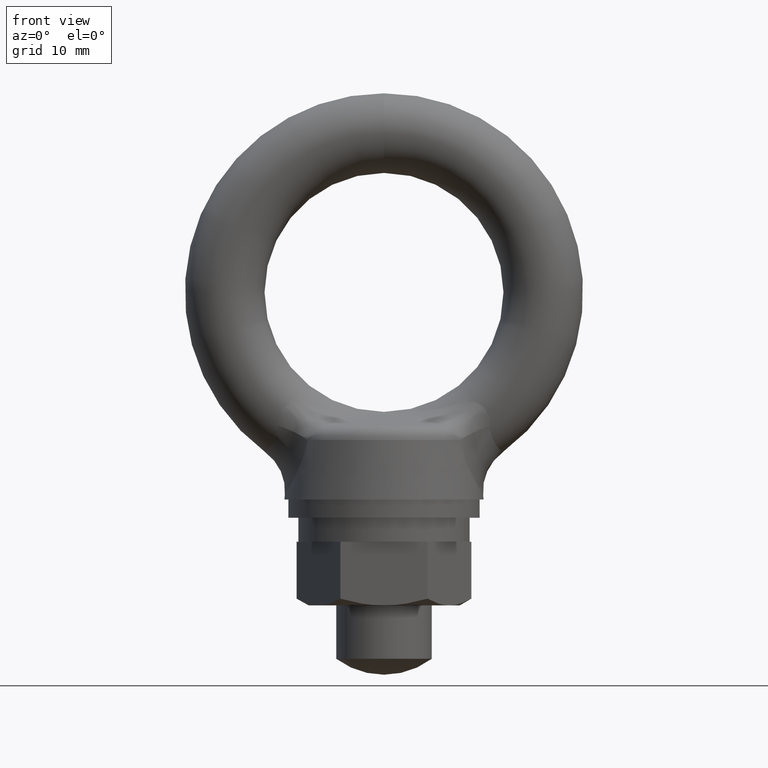
[diagram: clean part render]
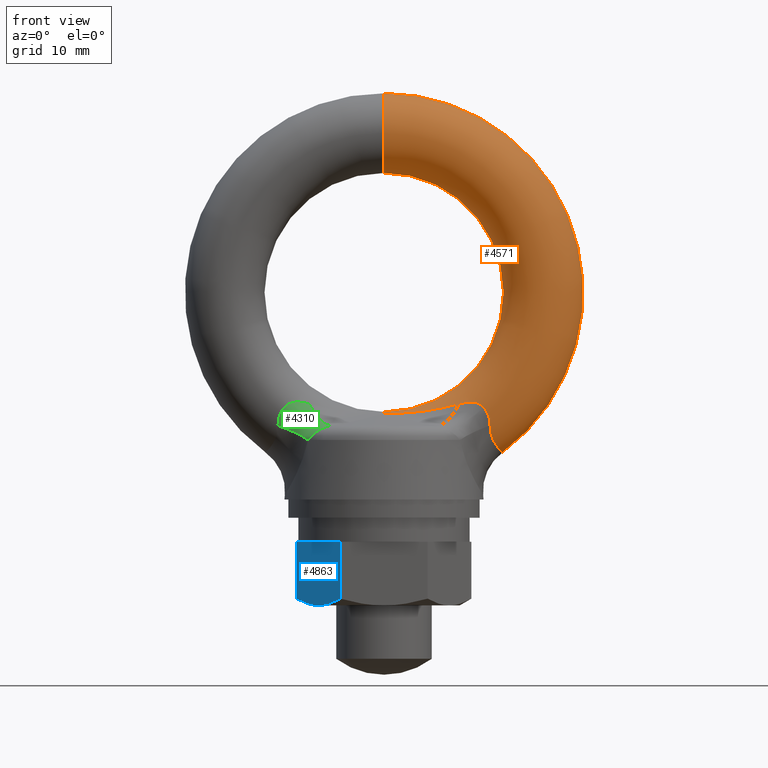
[diagram: same view with three faces highlighted in distinct colors, each labeled with its STEP entity id]
A machine part, front view with three faces highlighted in distinct colors.
Their STEP definitions:

[orange] entity #4571 — the highlighted toroidal blend (fillet) surface has major radius 20 mm and minor (blend) radius 5 mm.
#1803 = CARTESIAN_POINT ( 'NONE',  ( 1.836909530733565900E-015, 0.0000000000000000000, 15.00000000000000000 ) ) ;
#1809 = FACE_OUTER_BOUND ( 'NONE', #4572, .T. ) ;
#1810 = CARTESIAN_POINT ( 'NONE',  ( 0.0000000000000000000, 6.123031769111885300E-016, -15.00000000000000000 ) ) ;
#1811 = DIRECTION ( 'NONE',  ( 0.0000000000000000000, 0.0000000000000000000, 1.000000000000000000 ) ) ;
#1812 = DIRECTION ( 'NONE',  ( -1.000000000000000000, 0.0000000000000000000, 0.0000000000000000000 ) ) ;
#1813 = CARTESIAN_POINT ( 'NONE',  ( 0.0000000000000000000, 0.0000000000000000000, -20.00000000000000000 ) ) ;
#1947 = CARTESIAN_POINT ( 'NONE',  ( -4.717996680494776700E-016, -1.396546343005727700, -15.19899403126414200 ) ) ;
#1970 = AXIS2_PLACEMENT_3D ( 'NONE', #1813, #1812, #1811 ) ;
#1971 = CIRCLE ( 'NONE', #1970, 5.000000000000000900 ) ;
#1973 = DIRECTION ( 'NONE',  ( 0.0000000000000000000, 0.0000000000000000000, -1.000000000000000000 ) ) ;
#1974 = DIRECTION ( 'NONE',  ( 0.0000000000000000000, -1.000000000000000000, 0.0000000000000000000 ) ) ;
#1975 = AXIS2_PLACEMENT_3D ( 'NONE', #1977, #1974, #1973 ) ;
#1976 = TOROIDAL_SURFACE ( 'NONE', #1975, 20.00000000000000000, 5.000000000000000000 ) ;
#1977 = CARTESIAN_POINT ( 'NONE',  ( 0.0000000000000000000, 0.0000000000000000000, 0.0000000000000000000 ) ) ;
#1978 = CARTESIAN_POINT ( 'NONE',  ( 13.67240245562576600, -4.037761253187789600, -18.44718452189831800 ) ) ;
#1979 = CARTESIAN_POINT ( 'NONE',  ( 13.50570577296679900, -4.334841075657951800, -18.00406602806383600 ) ) ;
#1980 = CARTESIAN_POINT ( 'NONE',  ( 13.43683126336191200, -4.461488643268315200, -17.76130603608107000 ) ) ;
#1981 = CARTESIAN_POINT ( 'NONE',  ( 13.34489989542290500, -4.665721263304945400, -17.25725524147958000 ) ) ;
#1982 = CARTESIAN_POINT ( 'NONE',  ( 13.32082310776328500, -4.745031509570822900, -16.99405943649485800 ) ) ;
#1983 = CARTESIAN_POINT ( 'NONE',  ( 13.31893206947279900, -4.806487607529510000, -16.72142944604119900 ) ) ;
#1989 = B_SPLINE_CURVE_WITH_KNOTS ( 'NONE', 3,
 ( #1983, #1982, #1981, #1980, #1979, #1978, #3123, #3122, #3131, #3130, #3129, #3128, #3127, #3126, #3125, #3124, #3360, #3352 ),
 .UNSPECIFIED., .F., .F.,
 ( 4, 2, 2, 2, 2, 2, 2, 2, 4 ),
 ( 0.0000000000000000000, 0.0008260411146845992900, 0.001652082229369198600, 0.002478123344053798100, 0.003304164458738397200, 0.004130205573422996200, 0.004956246688107596200, 0.005782287802792195200, 0.006608328917476794300 ),
 .UNSPECIFIED. ) ;
#3122 = CARTESIAN_POINT ( 'NONE',  ( 13.96637617585033900, -3.501059881331145500, -18.99905945545883100 ) ) ;
#3123 = CARTESIAN_POINT ( 'NONE',  ( 13.76778709301094800, -3.870817646237091600, -18.64429289591074500 ) ) ;
#3124 = CARTESIAN_POINT ( 'NONE',  ( 14.84533983098385900, -0.5558040511086751500, -20.08600701699455700 ) ) ;
#3125 = CARTESIAN_POINT ( 'NONE',  ( 14.78084906691967900, -1.098514152506589600, -20.02046560253581100 ) ) ;
#3126 = CARTESIAN_POINT ( 'NONE',  ( 14.73321402032223800, -1.365020550477769300, -19.97163942757218900 ) ) ;
#3127 = CARTESIAN_POINT ( 'NONE',  ( 14.60973656529679200, -1.888271480216530800, -19.83901238076418500 ) ) ;
#3128 = CARTESIAN_POINT ( 'NONE',  ( 14.53372426597061900, -2.144291321031278000, -19.75496817631265100 ) ) ;
#3129 = CARTESIAN_POINT ( 'NONE',  ( 14.36402497189928200, -2.628368181800164300, -19.55341431477504300 ) ) ;
#3130 = CARTESIAN_POINT ( 'NONE',  ( 14.26976093052804200, -2.858846880441353400, -19.43543141540434100 ) ) ;
#3131 = CARTESIAN_POINT ( 'NONE',  ( 14.07050433585509100, -3.296335374418409200, -19.15784801750034600 ) ) ;
#3351 = CARTESIAN_POINT ( 'NONE',  ( 13.31893206947279900, -4.806487607529510000, -16.72142944604119900 ) ) ;
#3352 = CARTESIAN_POINT ( 'NONE',  ( 14.86215204503970700, -2.527848671037101700E-011, -20.10264750201132600 ) ) ;
#3360 = CARTESIAN_POINT ( 'NONE',  ( 14.86215204503871100, -0.2769930551495659600, -20.10264750201035300 ) ) ;
#3444 = CARTESIAN_POINT ( 'NONE',  ( 14.86215204503970700, -2.527848671037101700E-011, -20.10264750201132600 ) ) ;
#4388 = EDGE_CURVE ( 'NONE', #4458, #4575, #7987, .T. ) ;
#4402 = EDGE_CURVE ( 'NONE', #4403, #4556, #7969, .T. ) ;
#4403 = VERTEX_POINT ( 'NONE', #7964 ) ;
#4450 = EDGE_CURVE ( 'NONE', #4576, #4403, #8329, .T. ) ;
#4451 = ORIENTED_EDGE ( 'NONE', *, *, #4402, .T. ) ;
#4452 = ORIENTED_EDGE ( 'NONE', *, *, #4453, .F. ) ;
#4453 = EDGE_CURVE ( 'NONE', #4568, #4556, #8324, .T. ) ;
#4455 = ORIENTED_EDGE ( 'NONE', *, *, #4567, .F. ) ;
#4456 = ORIENTED_EDGE ( 'NONE', *, *, #4457, .T. ) ;
#4457 = EDGE_CURVE ( 'NONE', #4565, #4458, #8314, .T. ) ;
#4458 = VERTEX_POINT ( 'NONE', #8313 ) ;
#4459 = ORIENTED_EDGE ( 'NONE', *, *, #4388, .T. ) ;
#4556 = VERTEX_POINT ( 'NONE', #1803 ) ;
#4565 = VERTEX_POINT ( 'NONE', #1947 ) ;
#4567 = EDGE_CURVE ( 'NONE', #4565, #4568, #1971, .T. ) ;
#4568 = VERTEX_POINT ( 'NONE', #1810 ) ;
#4571 = ADVANCED_FACE ( 'NONE', ( #1809 ), #1976, .T. ) ;
#4572 = EDGE_LOOP ( 'NONE', ( #4573, #4577, #4451, #4452, #4455, #4456, #4459 ) ) ;
#4573 = ORIENTED_EDGE ( 'NONE', *, *, #4574, .T. ) ;
#4574 = EDGE_CURVE ( 'NONE', #4575, #4576, #1989, .T. ) ;
#4575 = VERTEX_POINT ( 'NONE', #3351 ) ;
#4576 = VERTEX_POINT ( 'NONE', #3444 ) ;
#4577 = ORIENTED_EDGE ( 'NONE', *, *, #4450, .T. ) ;
#7964 = CARTESIAN_POINT ( 'NONE',  ( 3.061515884555943100E-015, 0.0000000000000000000, 25.00000000000000000 ) ) ;
#7965 = DIRECTION ( 'NONE',  ( -1.224606353822377300E-016, 0.0000000000000000000, -1.000000000000000000 ) ) ;
#7966 = DIRECTION ( 'NONE',  ( 1.000000000000000000, 0.0000000000000000000, -1.224606353822377300E-016 ) ) ;
#7967 = CARTESIAN_POINT ( 'NONE',  ( 2.449212707644754500E-015, 0.0000000000000000000, 20.00000000000000000 ) ) ;
#7968 = AXIS2_PLACEMENT_3D ( 'NONE', #7967, #7966, #7965 ) ;
#7969 = CIRCLE ( 'NONE', #7968, 5.000000000000000900 ) ;
#7975 = CARTESIAN_POINT ( 'NONE',  ( 11.27036880596043600, -4.491167963731136600, -13.76858856324484200 ) ) ;
#7976 = CARTESIAN_POINT ( 'NONE',  ( 11.03064380882981200, -4.402727266938579300, -13.74696301492117600 ) ) ;
#7977 = CARTESIAN_POINT ( 'NONE',  ( 10.55821174782594500, -4.235432367691189800, -13.75317382868052200 ) ) ;
#7978 = CARTESIAN_POINT ( 'NONE',  ( 10.32401252611513700, -4.155881162634873500, -13.77982682544741200 ) ) ;
#7979 = CARTESIAN_POINT ( 'NONE',  ( 9.856271601083765400, -4.006710561048088900, -13.86035286829717400 ) ) ;
#7980 = CARTESIAN_POINT ( 'NONE',  ( 9.622770813155515400, -3.937054657550206600, -13.91443170963046500 ) ) ;
#7981 = CARTESIAN_POINT ( 'NONE',  ( 9.388747886670287800, -3.872499616173370000, -13.97642154846874100 ) ) ;
#7987 = B_SPLINE_CURVE_WITH_KNOTS ( 'NONE', 3,
 ( #7981, #7980, #7979, #7978, #7977, #7976, #7975, #8021, #8020, #8019, #8018, #8017, #8016, #8015, #8014, #8013, #8012, #8011, #8010, #8009 ),
 .UNSPECIFIED., .F., .F.,
 ( 4, 2, 2, 2, 2, 2, 2, 2, 2, 4 ),
 ( 0.0000000000000000000, 0.0007459609055437958100, 0.001491921811087591600, 0.002237882716631387500, 0.002610863169403283200, 0.002983843622175178900, 0.003729804527718973300, 0.004475765433262768100, 0.005221726338806562100, 0.005967687244350356100 ),
 .UNSPECIFIED. ) ;
#8009 = CARTESIAN_POINT ( 'NONE',  ( 13.31893206947279900, -4.806487607529510000, -16.72142944604119900 ) ) ;
#8010 = CARTESIAN_POINT ( 'NONE',  ( 13.31722967571284900, -4.861813022251044300, -16.47599623780992000 ) ) ;
#8011 = CARTESIAN_POINT ( 'NONE',  ( 13.29555321991705000, -4.907397779525806100, -16.23237539496364300 ) ) ;
#8012 = CARTESIAN_POINT ( 'NONE',  ( 13.20755405587418400, -4.973990871093229200, -15.74877268963589700 ) ) ;
#8013 = CARTESIAN_POINT ( 'NONE',  ( 13.14040771737801400, -4.995143577508844900, -15.50613163224529100 ) ) ;
#8014 = CARTESIAN_POINT ( 'NONE',  ( 12.95133397282251200, -5.003372782988280100, -15.03942137297255900 ) ) ;
#8015 = CARTESIAN_POINT ( 'NONE',  ( 12.82960006013693600, -4.990118434702150600, -14.81686167039208800 ) ) ;
#8016 = CARTESIAN_POINT ( 'NONE',  ( 12.53183767089284700, -4.925820170475174300, -14.42283944018394200 ) ) ;
#8017 = CARTESIAN_POINT ( 'NONE',  ( 12.35134392732280300, -4.873393207485592300, -14.24778294262497100 ) ) ;
#8018 = CARTESIAN_POINT ( 'NONE',  ( 12.05055120787982900, -4.773449477152804700, -14.04624909107293000 ) ) ;
#8019 = CARTESIAN_POINT ( 'NONE',  ( 11.94364925014412300, -4.736150751742005800, -13.98788738177488400 ) ) ;
#8020 = CARTESIAN_POINT ( 'NONE',  ( 11.72512840998762900, -4.657983113003417100, -13.89239461424387700 ) ) ;
#8021 = CARTESIAN_POINT ( 'NONE',  ( 11.61326941286798400, -4.617068941837724900, -13.85483344592803900 ) ) ;
#8296 = CARTESIAN_POINT ( 'NONE',  ( 9.388747886670287800, -3.872499616173370000, -13.97642154846874100 ) ) ;
#8297 = CARTESIAN_POINT ( 'NONE',  ( 8.622698519352908900, -3.661185496883460700, -14.17933874780205800 ) ) ;
#8298 = CARTESIAN_POINT ( 'NONE',  ( 7.856620617718467900, -3.438257343164874400, -14.36777881275696300 ) ) ;
#8299 = CARTESIAN_POINT ( 'NONE',  ( 6.315479284121382300, -2.984005708236677100, -14.69584200433367700 ) ) ;
#8300 = CARTESIAN_POINT ( 'NONE',  ( 5.540879932536299200, -2.752477905495490400, -14.83523052519214900 ) ) ;
#8301 = CARTESIAN_POINT ( 'NONE',  ( 3.985026776475601600, -2.291932875705655600, -15.04878069877858800 ) ) ;
#8302 = CARTESIAN_POINT ( 'NONE',  ( 3.203596297723536600, -2.060293727076496900, -15.12269425293568600 ) ) ;
#8303 = CARTESIAN_POINT ( 'NONE',  ( 2.018480692261967600, -1.736038980182070400, -15.18106420806809500 ) ) ;
#8304 = CARTESIAN_POINT ( 'NONE',  ( 1.621442230983189100, -1.631243253018877600, -15.19168310134094900 ) ) ;
#8305 = CARTESIAN_POINT ( 'NONE',  ( 0.8193846023107679300, -1.460590522253784300, -15.20043721040462400 ) ) ;
#8306 = CARTESIAN_POINT ( 'NONE',  ( 0.4107013842530511900, -1.396546343005719900, -15.19899403126414100 ) ) ;
#8307 = CARTESIAN_POINT ( 'NONE',  ( -4.717996680494776700E-016, -1.396546343005727700, -15.19899403126414200 ) ) ;
#8313 = CARTESIAN_POINT ( 'NONE',  ( 9.388747886670287800, -3.872499616173370000, -13.97642154846874100 ) ) ;
#8314 = B_SPLINE_CURVE_WITH_KNOTS ( 'NONE', 3,
 ( #8307, #8306, #8305, #8304, #8303, #8302, #8301, #8300, #8299, #8298, #8297, #8296 ),
 .UNSPECIFIED., .F., .F.,
 ( 4, 2, 2, 2, 2, 4 ),
 ( 0.009825188964170462500, 0.01105496392759219000, 0.01228473889101391900, 0.01474428881785737700, 0.01720383874470083500, 0.01966338867154429300 ),
 .UNSPECIFIED. ) ;
#8320 = DIRECTION ( 'NONE',  ( 0.0000000000000000000, 0.0000000000000000000, -1.000000000000000000 ) ) ;
#8321 = DIRECTION ( 'NONE',  ( 0.0000000000000000000, -1.000000000000000000, 0.0000000000000000000 ) ) ;
#8322 = CARTESIAN_POINT ( 'NONE',  ( 0.0000000000000000000, 6.123031769111886300E-016, 0.0000000000000000000 ) ) ;
#8323 = AXIS2_PLACEMENT_3D ( 'NONE', #8322, #8321, #8320 ) ;
#8324 = CIRCLE ( 'NONE', #8323, 15.00000000000000000 ) ;
#8325 = DIRECTION ( 'NONE',  ( 0.0000000000000000000, 0.0000000000000000000, -1.000000000000000000 ) ) ;
#8326 = DIRECTION ( 'NONE',  ( 0.0000000000000000000, -1.000000000000000000, 0.0000000000000000000 ) ) ;
#8327 = CARTESIAN_POINT ( 'NONE',  ( 0.0000000000000000000, 0.0000000000000000000, 0.0000000000000000000 ) ) ;
#8328 = AXIS2_PLACEMENT_3D ( 'NONE', #8327, #8326, #8325 ) ;
#8329 = CIRCLE ( 'NONE', #8328, 25.00000000000000000 ) ;

[blue] entity #4863 — the highlighted planar face has unit normal (-0.866, -0.5, 0).
#3639 = CARTESIAN_POINT ( 'NONE',  ( -8.227241919940189200, -4.749998988502929900, -39.29999900000009900 ) ) ;
#3640 = VECTOR ( 'NONE', #3663, 1000.000000000000000 ) ;
#3641 = CARTESIAN_POINT ( 'NONE',  ( -8.227241667975970800, -4.749998843031360000, -31.29999900000000300 ) ) ;
#3642 = LINE ( 'NONE', #3641, #3640 ) ;
#3643 = B_SPLINE_CURVE_WITH_KNOTS ( 'NONE', 3,
 ( #3639, #3670, #3669, #3668, #3667, #3666, #3665, #3664 ),
 .UNSPECIFIED., .F., .F.,
 ( 4, 2, 2, 4 ),
 ( 0.005549983580204832600, 0.006932233158109624700, 0.008314482736014417600, 0.01107898189182400200 ),
 .UNSPECIFIED. ) ;
#3644 = CARTESIAN_POINT ( 'NONE',  ( -8.227241919940189200, -4.749998988502929900, -39.29999900000009900 ) ) ;
#3645 = CARTESIAN_POINT ( 'NONE',  ( -8.694467617334988000, -3.940739530354760300, -39.29999916660592900 ) ) ;
#3646 = CARTESIAN_POINT ( 'NONE',  ( -9.155885329051512800, -3.141540383233776700, -39.21913203408917100 ) ) ;
#3647 = CARTESIAN_POINT ( 'NONE',  ( -10.06913193212121300, -1.559750417761376400, -38.92389393324790300 ) ) ;
#3663 = DIRECTION ( 'NONE',  ( -0.4999998935266240500, 0.8660254652568621900, 0.0000000000000000000 ) ) ;
#3664 = CARTESIAN_POINT ( 'NONE',  ( -5.484827999999999400, -9.500000000000000000, -38.45149309617215000 ) ) ;
#3665 = CARTESIAN_POINT ( 'NONE',  ( -5.932330552512343800, -8.724902622459261200, -38.70985890972451000 ) ) ;
#3666 = CARTESIAN_POINT ( 'NONE',  ( -6.383566675635899300, -7.943338509090161800, -38.92314492362717700 ) ) ;
#3667 = CARTESIAN_POINT ( 'NONE',  ( -7.068556014150707300, -6.756901835275766800, -39.14484864142915700 ) ) ;
#3668 = CARTESIAN_POINT ( 'NONE',  ( -7.298245620966589800, -6.359067653343492700, -39.20233108241487900 ) ) ;
#3669 = CARTESIAN_POINT ( 'NONE',  ( -7.760718403856201600, -5.558041068826263100, -39.27994365559980100 ) ) ;
#3670 = CARTESIAN_POINT ( 'NONE',  ( -7.994502051249371600, -5.153115798592510900, -39.29999916865884300 ) ) ;
#3696 = CARTESIAN_POINT ( 'NONE',  ( -10.96965400000000000, 8.350749306862720600E-017, -38.45149386748449400 ) ) ;
#3697 = DIRECTION ( 'NONE',  ( 0.0000000000000000000, 0.0000000000000000000, -1.000000000000000000 ) ) ;
#3698 = VECTOR ( 'NONE', #3697, 1000.000000000000000 ) ;
#3699 = CARTESIAN_POINT ( 'NONE',  ( -10.96965400000000000, 0.0000000000000000000, 960.7000009999999300 ) ) ;
#3700 = LINE ( 'NONE', #3699, #3698 ) ;
#3816 = CARTESIAN_POINT ( 'NONE',  ( -10.52103144511055500, -0.7770372791132672500, -38.71050622031481900 ) ) ;
#3817 = CARTESIAN_POINT ( 'NONE',  ( -10.96965400000000000, 8.350749306862720600E-017, -38.45149386748449400 ) ) ;
#3818 = CARTESIAN_POINT ( 'NONE',  ( -8.227241919940189200, -4.749998988502929900, -39.29999900000009900 ) ) ;
#3819 = B_SPLINE_CURVE_WITH_KNOTS ( 'NONE', 3,
 ( #3817, #3816, #3647, #3646, #3645, #3644 ),
 .UNSPECIFIED., .F., .F.,
 ( 4, 2, 4 ),
 ( 2.380730476794761700E-007, 0.002775110826626256100, 0.005549983580204832600 ),
 .UNSPECIFIED. ) ;
#3878 = CARTESIAN_POINT ( 'NONE',  ( -10.96965400000000000, 0.0000000000000000000, -31.29999900000004900 ) ) ;
#3879 = DIRECTION ( 'NONE',  ( 0.4999998935266241600, -0.8660254652568620800, 0.0000000000000000000 ) ) ;
#3880 = DIRECTION ( 'NONE',  ( -0.8660254652568620800, -0.4999998935266241600, 0.0000000000000000000 ) ) ;
#3881 = CARTESIAN_POINT ( 'NONE',  ( -5.484827999999999400, -9.500000000000000000, 960.7000009999999300 ) ) ;
#3882 = AXIS2_PLACEMENT_3D ( 'NONE', #3881, #3880, #3879 ) ;
#3883 = PLANE ( 'NONE',  #3882 ) ;
#3884 = CARTESIAN_POINT ( 'NONE',  ( -5.484827999999999400, -9.500000000000000000, -31.29999900000004900 ) ) ;
#3885 = DIRECTION ( 'NONE',  ( 0.0000000000000000000, 0.0000000000000000000, -1.000000000000000000 ) ) ;
#3886 = VECTOR ( 'NONE', #3885, 1000.000000000000000 ) ;
#3887 = CARTESIAN_POINT ( 'NONE',  ( -5.484827999999999400, -9.500000000000000000, 960.7000009999999300 ) ) ;
#3888 = LINE ( 'NONE', #3887, #3886 ) ;
#3950 = FACE_OUTER_BOUND ( 'NONE', #4864, .T. ) ;
#3972 = CARTESIAN_POINT ( 'NONE',  ( -5.484827999999999400, -9.500000000000000000, -38.45149309617215000 ) ) ;
#4733 = EDGE_CURVE ( 'NONE', #4866, #4734, #3700, .T. ) ;
#4734 = VERTEX_POINT ( 'NONE', #3696 ) ;
#4735 = ORIENTED_EDGE ( 'NONE', *, *, #4736, .T. ) ;
#4736 = EDGE_CURVE ( 'NONE', #4734, #4737, #3819, .T. ) ;
#4737 = VERTEX_POINT ( 'NONE', #3818 ) ;
#4738 = ORIENTED_EDGE ( 'NONE', *, *, #4739, .T. ) ;
#4739 = EDGE_CURVE ( 'NONE', #4737, #4854, #3643, .T. ) ;
#4740 = ORIENTED_EDGE ( 'NONE', *, *, #4852, .F. ) ;
#4741 = ORIENTED_EDGE ( 'NONE', *, *, #4742, .T. ) ;
#4742 = EDGE_CURVE ( 'NONE', #4853, #4866, #3642, .T. ) ;
#4852 = EDGE_CURVE ( 'NONE', #4853, #4854, #3888, .T. ) ;
#4853 = VERTEX_POINT ( 'NONE', #3884 ) ;
#4854 = VERTEX_POINT ( 'NONE', #3972 ) ;
#4863 = ADVANCED_FACE ( 'NONE', ( #3950 ), #3883, .T. ) ;
#4864 = EDGE_LOOP ( 'NONE', ( #4865, #4735, #4738, #4740, #4741 ) ) ;
#4865 = ORIENTED_EDGE ( 'NONE', *, *, #4733, .T. ) ;
#4866 = VERTEX_POINT ( 'NONE', #3878 ) ;

[green] entity #4310 — the highlighted face is a freeform B-spline surface patch.
#1800 = CARTESIAN_POINT ( 'NONE',  ( -13.20716408490534900, -4.974196633764810500, -15.74701167014382700 ) ) ;
#1801 = CARTESIAN_POINT ( 'NONE',  ( -13.29554605287141200, -4.907492148943015700, -16.23195564184692700 ) ) ;
#1802 = B_SPLINE_CURVE_WITH_KNOTS ( 'NONE', 3,
 ( #1856, #1855, #1801, #1800, #1854, #1853, #1852, #1895, #1894, #1893, #1892, #1891, #1890, #1889, #1839, #1838, #1837, #1836, #1835, #1834 ),
 .UNSPECIFIED., .F., .F.,
 ( 4, 2, 2, 2, 2, 2, 2, 2, 2, 4 ),
 ( 0.0000000000000000000, 0.0007456957374151884800, 0.001491391474830377000, 0.002237087212245565300, 0.002982782949660753900, 0.003355630818368348400, 0.003728478687075942500, 0.004474174424491131500, 0.005219870161906320500, 0.005965565899321510400 ),
 .UNSPECIFIED. ) ;
#1834 = CARTESIAN_POINT ( 'NONE',  ( -9.388747886670287800, -3.872499616173370000, -13.97642154846874100 ) ) ;
#1835 = CARTESIAN_POINT ( 'NONE',  ( -9.622791567748533800, -3.937060382688528600, -13.91442621199022900 ) ) ;
#1836 = CARTESIAN_POINT ( 'NONE',  ( -9.857578638938626600, -4.007105676884409100, -13.86006324770248300 ) ) ;
#1837 = CARTESIAN_POINT ( 'NONE',  ( -10.32591816442637600, -4.156510773840197200, -13.77956379790940000 ) ) ;
#1838 = CARTESIAN_POINT ( 'NONE',  ( -10.55986041312676300, -4.236012015019325000, -13.75312123015250000 ) ) ;
#1839 = CARTESIAN_POINT ( 'NONE',  ( -11.02990934933251100, -4.402471360979028200, -13.74700365507099200 ) ) ;
#1852 = CARTESIAN_POINT ( 'NONE',  ( -12.83095686702874800, -4.990425999208319800, -14.81858703838533700 ) ) ;
#1853 = CARTESIAN_POINT ( 'NONE',  ( -12.95000508961919500, -5.003280128140191100, -15.03678076668746600 ) ) ;
#1854 = CARTESIAN_POINT ( 'NONE',  ( -13.13939469567438500, -4.995336309556057200, -15.50299934104202400 ) ) ;
#1855 = CARTESIAN_POINT ( 'NONE',  ( -13.31722921488793600, -4.861827998415892100, -16.47592980092546000 ) ) ;
#1856 = CARTESIAN_POINT ( 'NONE',  ( -13.31893206947279900, -4.806487607529510000, -16.72142944604119900 ) ) ;
#1889 = CARTESIAN_POINT ( 'NONE',  ( -11.26792950221027600, -4.490269575372594500, -13.76813202839546200 ) ) ;
#1890 = CARTESIAN_POINT ( 'NONE',  ( -11.61236774582785500, -4.616739249964407300, -13.85452889140942100 ) ) ;
#1891 = CARTESIAN_POINT ( 'NONE',  ( -11.72621776301365600, -4.658375832973575800, -13.89283282168687700 ) ) ;
#1892 = CARTESIAN_POINT ( 'NONE',  ( -11.94366068837105600, -4.736151783127862600, -13.98793040789124500 ) ) ;
#1893 = CARTESIAN_POINT ( 'NONE',  ( -12.04800721918670100, -4.772570607816228400, -14.04479500500064800 ) ) ;
#1894 = CARTESIAN_POINT ( 'NONE',  ( -12.34777937304510500, -4.872274553751541500, -14.24490453279811100 ) ) ;
#1895 = CARTESIAN_POINT ( 'NONE',  ( -12.52997194710976500, -4.925402686716116000, -14.42044075256415200 ) ) ;
#1934 = CARTESIAN_POINT ( 'NONE',  ( -9.388747886670287800, -3.872499616173370000, -13.97642154846874100 ) ) ;
#3136 = CARTESIAN_POINT ( 'NONE',  ( -13.31893206947279900, -4.806487607529510000, -16.72142944604119900 ) ) ;
#3558 = CARTESIAN_POINT ( 'NONE',  ( -9.537127817778650000, -7.028310572481229800, -18.53738990767994800 ) ) ;
#3592 = B_SPLINE_CURVE_WITH_KNOTS ( 'NONE', 3,
 ( #3732, #3731, #3730, #3735, #3734, #3733, #3789, #3788, #3787, #3638 ),
 .UNSPECIFIED., .F., .F.,
 ( 4, 2, 2, 2, 4 ),
 ( 0.0000000000000000000, 0.0009180277221817911200, 0.001836055444363582200, 0.002754083166545373500, 0.003672110888727164500 ),
 .UNSPECIFIED. ) ;
#3638 = CARTESIAN_POINT ( 'NONE',  ( -9.537127817778650000, -7.028310572481229800, -18.53738990767994800 ) ) ;
#3730 = CARTESIAN_POINT ( 'NONE',  ( -7.222409335276565500, -7.762224530899469100, -16.84144719434066300 ) ) ;
#3731 = CARTESIAN_POINT ( 'NONE',  ( -6.923499156298799300, -7.738500842341252900, -16.77258283896321000 ) ) ;
#3732 = CARTESIAN_POINT ( 'NONE',  ( -6.616645683539579700, -7.751372220779610500, -16.74023616556295100 ) ) ;
#3733 = CARTESIAN_POINT ( 'NONE',  ( -8.571014422538098600, -7.666058305876177300, -17.54837710882584300 ) ) ;
#3734 = CARTESIAN_POINT ( 'NONE',  ( -8.066797062893675400, -7.765780834802571400, -17.21041175693599000 ) ) ;
#3735 = CARTESIAN_POINT ( 'NONE',  ( -7.796735016101216300, -7.777521810739974800, -17.06314503767733700 ) ) ;
#3787 = CARTESIAN_POINT ( 'NONE',  ( -9.387530256854034900, -7.200739040392232200, -18.33010265895204000 ) ) ;
#3788 = CARTESIAN_POINT ( 'NONE',  ( -9.210486901524483000, -7.346946296539043100, -18.12853105271439000 ) ) ;
#3789 = CARTESIAN_POINT ( 'NONE',  ( -8.799428681623485500, -7.581588835471430700, -17.73487168706547500 ) ) ;
#4310 = ADVANCED_FACE ( 'NONE', ( #4703 ), #4918, .F. ) ;
#4321 = EDGE_CURVE ( 'NONE', #4415, #4553, #5455, .T. ) ;
#4415 = VERTEX_POINT ( 'NONE', #7359 ) ;
#4460 = EDGE_LOOP ( 'NONE', ( #4461, #4462, #4463, #4465 ) ) ;
#4461 = ORIENTED_EDGE ( 'NONE', *, *, #4321, .T. ) ;
#4462 = ORIENTED_EDGE ( 'NONE', *, *, #4552, .F. ) ;
#4463 = ORIENTED_EDGE ( 'NONE', *, *, #4464, .F. ) ;
#4464 = EDGE_CURVE ( 'NONE', #4585, #4550, #8312, .T. ) ;
#4465 = ORIENTED_EDGE ( 'NONE', *, *, #4709, .F. ) ;
#4550 = VERTEX_POINT ( 'NONE', #3136 ) ;
#4552 = EDGE_CURVE ( 'NONE', #4550, #4553, #1802, .T. ) ;
#4553 = VERTEX_POINT ( 'NONE', #1934 ) ;
#4585 = VERTEX_POINT ( 'NONE', #3558 ) ;
#4686 = CARTESIAN_POINT ( 'NONE',  ( -8.407599452785701600, -7.313976858576634000, -17.16588118678008000 ) ) ;
#4687 = CARTESIAN_POINT ( 'NONE',  ( -8.700510071029942300, -6.915414916523454600, -17.01421505075605400 ) ) ;
#4688 = CARTESIAN_POINT ( 'NONE',  ( -8.116331662708852000, -7.748001536860591900, -17.25094151657198800 ) ) ;
#4689 = CARTESIAN_POINT ( 'NONE',  ( -8.377067048697545800, -7.317193179970622000, -17.14912106535518200 ) ) ;
#4690 = CARTESIAN_POINT ( 'NONE',  ( -8.670563217075494900, -6.917708048920542500, -16.99884946724388300 ) ) ;
#4691 = CARTESIAN_POINT ( 'NONE',  ( -8.987231670357143500, -6.562597292540542200, -16.80503608391255800 ) ) ;
#4692 = CARTESIAN_POINT ( 'NONE',  ( -9.303900123638790400, -6.207486536160541100, -16.61122270058123000 ) ) ;
#4693 = CARTESIAN_POINT ( 'NONE',  ( -9.643695044530723200, -5.896801533783009800, -16.37389557399162500 ) ) ;
#4694 = CARTESIAN_POINT ( 'NONE',  ( -9.995515358826137800, -5.640692340792181600, -16.10080816330858500 ) ) ;
#4695 = CARTESIAN_POINT ( 'NONE',  ( -10.34733567312155100, -5.384583147801353500, -15.82772075262554900 ) ) ;
#4696 = CARTESIAN_POINT ( 'NONE',  ( -10.71113047756689700, -5.183086819451451900, -15.51891256960307300 ) ) ;
#4697 = CARTESIAN_POINT ( 'NONE',  ( -10.02674353939285900, -5.643790544237623900, -16.11602564158247800 ) ) ;
#4703 = FACE_OUTER_BOUND ( 'NONE', #4460, .T. ) ;
#4709 = EDGE_CURVE ( 'NONE', #4415, #4585, #3592, .T. ) ;
#4825 = CARTESIAN_POINT ( 'NONE',  ( -11.07501462358609200, -5.042786225455597700, -15.18447235407988800 ) ) ;
#4826 = CARTESIAN_POINT ( 'NONE',  ( -11.43889876960528600, -4.902485631459742700, -14.85003213855670300 ) ) ;
#4827 = CARTESIAN_POINT ( 'NONE',  ( -11.80281960848478200, -4.823401071261766800, -14.49000827914027700 ) ) ;
#4828 = CARTESIAN_POINT ( 'NONE',  ( -12.15488787411312900, -4.808116231424924600, -14.11616272791957300 ) ) ;
#4829 = CARTESIAN_POINT ( 'NONE',  ( -8.147923246894707800, -7.744176559223764600, -17.26984159048992500 ) ) ;
#4830 = CARTESIAN_POINT ( 'NONE',  ( -9.333707510844192300, -6.207545759519856400, -16.62535754579558000 ) ) ;
#4831 = CARTESIAN_POINT ( 'NONE',  ( -9.673948747389713900, -5.898289504574854900, -16.38819417187329800 ) ) ;
#4832 = CARTESIAN_POINT ( 'NONE',  ( -9.017108790937067300, -6.561480338021655500, -16.81978629827581500 ) ) ;
#4873 = CARTESIAN_POINT ( 'NONE',  ( -11.33939496639113100, -5.404011713880549900, -16.96880818263827700 ) ) ;
#4874 = CARTESIAN_POINT ( 'NONE',  ( -11.70454925899608000, -5.245390455924915200, -16.77584333098480600 ) ) ;
#4875 = CARTESIAN_POINT ( 'NONE',  ( -12.08410520384000200, -5.133106385209210000, -16.58421327863345200 ) ) ;
#4876 = CARTESIAN_POINT ( 'NONE',  ( -12.46366114868392400, -5.020822314493504900, -16.39258322628210300 ) ) ;
#4877 = CARTESIAN_POINT ( 'NONE',  ( -12.85758923953020600, -4.954884159850474000, -16.20230287032971000 ) ) ;
#4878 = CARTESIAN_POINT ( 'NONE',  ( -13.25643519573618600, -4.936874438073257200, -16.01793894244066200 ) ) ;
#4879 = CARTESIAN_POINT ( 'NONE',  ( -9.374944124018119500, -7.199431461710776000, -18.32473373252162200 ) ) ;
#4880 = CARTESIAN_POINT ( 'NONE',  ( -9.592274963624452900, -6.864970879779245500, -18.16560674924145500 ) ) ;
#4881 = CARTESIAN_POINT ( 'NONE',  ( -9.845671511094899100, -6.558203573972559900, -17.99765653469312100 ) ) ;
#4882 = CARTESIAN_POINT ( 'NONE',  ( -10.12934097878041400, -6.286135969977827600, -17.82472209968531700 ) ) ;
#4883 = CARTESIAN_POINT ( 'NONE',  ( -10.41301044646592700, -6.014068365983096200, -17.65178766467751400 ) ) ;
#4884 = CARTESIAN_POINT ( 'NONE',  ( -10.72693289004508100, -5.776719561992495100, -17.47388114577849200 ) ) ;
#4885 = CARTESIAN_POINT ( 'NONE',  ( -11.06393220366523200, -5.579512273975162800, -17.29506300610408300 ) ) ;
#4886 = CARTESIAN_POINT ( 'NONE',  ( -11.40093151728538100, -5.382304985957830500, -17.11624486642967100 ) ) ;
#4887 = CARTESIAN_POINT ( 'NONE',  ( -11.76098400635951800, -5.225253072156402100, -16.93652761872699800 ) ) ;
#4888 = CARTESIAN_POINT ( 'NONE',  ( -12.13585850665038100, -5.111947635011493000, -16.76000776284985200 ) ) ;
#4889 = CARTESIAN_POINT ( 'NONE',  ( -12.51073300694124400, -4.998642197866582900, -16.58348790697270700 ) ) ;
#4890 = CARTESIAN_POINT ( 'NONE',  ( -12.90040315447816300, -4.929091223695397000, -16.41017776264374800 ) ) ;
#4891 = CARTESIAN_POINT ( 'NONE',  ( -13.29595927632144900, -4.904889882487688100, -16.24402307406296600 ) ) ;
#4892 = CARTESIAN_POINT ( 'NONE',  ( -9.459619899875138000, -7.117647400250828800, -18.42999241431477500 ) ) ;
#4893 = CARTESIAN_POINT ( 'NONE',  ( -9.674481186897413200, -6.795049967492538200, -18.27242344297339800 ) ) ;
#4894 = CARTESIAN_POINT ( 'NONE',  ( -9.924127944089459400, -6.498613668743151300, -18.10880628840157100 ) ) ;
#4895 = CARTESIAN_POINT ( 'NONE',  ( -10.20314235124555900, -6.234765519327566200, -17.94268802067241000 ) ) ;
#4896 = CARTESIAN_POINT ( 'NONE',  ( -10.48215675840165800, -5.970917369911980200, -17.77656975294324900 ) ) ;
#4897 = CARTESIAN_POINT ( 'NONE',  ( -10.79052115608625300, -5.739674049433531900, -17.60796085417533900 ) ) ;
#4898 = CARTESIAN_POINT ( 'NONE',  ( -11.12154498155136700, -5.546051596680407600, -17.44051183484585000 ) ) ;
#4899 = CARTESIAN_POINT ( 'NONE',  ( -11.45256880701648200, -5.352429143927284200, -17.27306281551636500 ) ) ;
#4900 = CARTESIAN_POINT ( 'NONE',  ( -11.80623111437695100, -5.196439816020029100, -17.10678421695513100 ) ) ;
#4901 = CARTESIAN_POINT ( 'NONE',  ( -12.17485895052286800, -5.081471041061164800, -16.94527187261366700 ) ) ;
#4902 = CARTESIAN_POINT ( 'NONE',  ( -12.54348678666878300, -4.966502266102300400, -16.78375952827220300 ) ) ;
#4903 = CARTESIAN_POINT ( 'NONE',  ( -12.92705682591940800, -4.892561348072644200, -16.62702358340594000 ) ) ;
#4904 = CARTESIAN_POINT ( 'NONE',  ( -13.31724669299919700, -4.861259984260596100, -16.47844961098305600 ) ) ;
#4905 = CARTESIAN_POINT ( 'NONE',  ( -9.537127817778653600, -7.028310572481227100, -18.53738990767995200 ) ) ;
#4906 = CARTESIAN_POINT ( 'NONE',  ( -9.749420776760048900, -6.717507049856432200, -18.38325500335318800 ) ) ;
#4907 = CARTESIAN_POINT ( 'NONE',  ( -9.994987278118491900, -6.431237492971280100, -18.22550769230264200 ) ) ;
#4908 = CARTESIAN_POINT ( 'NONE',  ( -10.26878078110255300, -6.175384915089892100, -18.06738977758060800 ) ) ;
#4909 = CARTESIAN_POINT ( 'NONE',  ( -10.54257428408661200, -5.919532337208503100, -17.90927186285857400 ) ) ;
#4910 = CARTESIAN_POINT ( 'NONE',  ( -10.84457921013932400, -5.694111296068430600, -17.75079234120499200 ) ) ;
#4911 = CARTESIAN_POINT ( 'NONE',  ( -11.16858917460305600, -5.503754330977967500, -17.59520806304476500 ) ) ;
#4912 = CARTESIAN_POINT ( 'NONE',  ( -11.49259913906678700, -5.313397365887505300, -17.43962378488453900 ) ) ;
#4913 = CARTESIAN_POINT ( 'NONE',  ( -11.83859570612171700, -5.158115307954013000, -17.28694360279639900 ) ) ;
#4914 = CARTESIAN_POINT ( 'NONE',  ( -12.19946843616863700, -5.041099297780919900, -17.14030518725486700 ) ) ;
#4915 = CARTESIAN_POINT ( 'NONE',  ( -12.56034116621555800, -4.924083287607827800, -16.99366677171333300 ) ) ;
#4916 = CARTESIAN_POINT ( 'NONE',  ( -12.93606952598278200, -4.845339983280739600, -16.85307846628713300 ) ) ;
#4917 = CARTESIAN_POINT ( 'NONE',  ( -13.31893206947281000, -4.806487607529510900, -16.72142944604121000 ) ) ;
#4918 = B_SPLINE_SURFACE_WITH_KNOTS ( 'NONE', 3, 3, ( 
 ( #4917, #4916, #4915, #4914, #4913, #4912, #4911, #4910, #4909, #4908, #4907, #4906, #4905 ),
 ( #4904, #4903, #4902, #4901, #4900, #4899, #4898, #4897, #4896, #4895, #4894, #4893, #4892 ),
 ( #4891, #4890, #4889, #4888, #4887, #4886, #4885, #4884, #4883, #4882, #4881, #4880, #4879 ),
 ( #4878, #4877, #4876, #4875, #4874, #4873, #5118, #5117, #5116, #5115, #5114, #5113, #5112 ),
 ( #5111, #5110, #5109, #5108, #5107, #5106, #5105, #5104, #5103, #5102, #5101, #5100, #5099 ),
 ( #5098, #5097, #5096, #5095, #5094, #5093, #5092, #5091, #5090, #5089, #5088, #5087, #5086 ),
 ( #5085, #5084, #5083, #5082, #5081, #5080, #5079, #5078, #5077, #5076, #5075, #5074, #5073 ),
 ( #5072, #5071, #5070, #5069, #5068, #5067, #5066, #5065, #5064, #5063, #5062, #5061, #5060 ),
 ( #5059, #5058, #5057, #5056, #5055, #5054, #5053, #5052, #5151, #5150, #5149, #5148, #5147 ),
 ( #5146, #5145, #5144, #5143, #5142, #5141, #5140, #5139, #5138, #5137, #5136, #5135, #5134 ),
 ( #5133, #5132, #5131, #5130, #5129, #5128, #5127, #5126, #5125, #5124, #5123, #5122, #5121 ),
 ( #5120, #5119, #5025, #5024, #5023, #5022, #5021, #5020, #5019, #5018, #5017, #5016, #5015 ),
 ( #5014, #5013, #5012, #5011, #5010, #5009, #5008, #5007, #5006, #5005, #5004, #5003, #5002 ),
 ( #5001, #5000, #4999, #4998, #4997, #4996, #4995, #4994, #4993, #4992, #4991, #4990, #4989 ),
 ( #4988, #4987, #4986, #4985, #4984, #4983, #4982, #4981, #4980, #4979, #4978, #4977, #4976 ),
 ( #4975, #4974, #4973, #4972, #4971, #4970, #4969, #4968, #4967, #4966, #4965, #4964, #4963 ),
 ( #4962, #4961, #4960, #4959, #4958, #4957, #4956, #4955, #4954, #4953, #4952, #4951, #4950 ),
 ( #4949, #4948, #5051, #5050, #5049, #5048, #5047, #5046, #5045, #5044, #5043, #5042, #5041 ),
 ( #5040, #5039, #5038, #5037, #5036, #5035, #5034, #5033, #5032, #5031, #5030, #5029, #5028 ),
 ( #5027, #5026, #4947, #4946, #4945, #4944, #4943, #4942, #4941, #4940, #4939, #4938, #4937 ),
 ( #4936, #4935, #4934, #4933, #4932, #4931, #5190, #5189, #5188, #5187, #5186, #5185, #5184 ),
 ( #5183, #5182, #5181, #5180, #5179, #5178, #5177, #5176, #5175, #5174, #5173, #5172, #5171 ),
 ( #5170, #5169, #5168, #5167, #5166, #5165, #5164, #5163, #5162, #5161, #5160, #5159, #5158 ),
 ( #5157, #5156, #5155, #5154, #5153, #5152, #4697, #4831, #4830, #4832, #4687, #4686, #4829 ),
 ( #4828, #4827, #4826, #4825, #4696, #4695, #4694, #4693, #4692, #4691, #4690, #4689, #4688 ),
 ( #5506, #5505, #5441, #5440, #5439, #5438, #5486, #5485, #5484, #5483, #5482, #5437, #5436 ),
 ( #5435, #5434, #5433, #5432, #5431, #5430, #5429, #5428, #5427, #5280, #5279, #5278, #5277 ),
 ( #5276, #5275, #5274, #5273, #5272, #5271, #5270, #5269, #5268, #5267, #5266, #5265, #5264 ),
 ( #5263, #5262, #5261, #5260, #5259, #5258, #5257, #5256, #5255, #5254, #5253, #5252, #5251 ),
 ( #5250, #5249, #5248, #5247, #5246, #5245, #5244, #5243, #5242, #5241, #5240, #5239, #5238 ),
 ( #5237, #5236, #5235, #5234, #5233, #5232, #5231, #5230, #5229, #5228, #5227, #5226, #5225 ),
 ( #5224, #5223, #5222, #5221, #5220, #5219, #5218, #5217, #5216, #5215, #5214, #5213, #5212 ),
 ( #5211, #5210, #5209, #5208, #5207, #5206, #5205, #5204, #5203, #5202, #5201, #5200, #5199 ),
 ( #5198, #5197, #5196, #5195, #5194, #5193, #5192, #5191, #5326, #5325, #5324, #5323, #5322 ),
 ( #5321, #5320, #5319, #5318, #5317, #5316, #5315, #5314, #5313, #5312, #5311, #5310, #5309 ),
 ( #5308, #5307, #5306, #5305, #5304, #5303, #5302, #5373, #5372, #5371, #5370, #5369, #5368 ),
 ( #5367, #5366, #5365, #5364, #5363, #5362, #5361, #5360, #5359, #5358, #5357, #5356, #5355 ),
 ( #5354, #5353, #5352, #5351, #5350, #5349, #5348, #5347, #5346, #5345, #5344, #5343, #5342 ),
 ( #5341, #5340, #5339, #5338, #5337, #5336, #5335, #5334, #5333, #5332, #5331, #5330, #5329 ),
 ( #5328, #5327, #5301, #5300, #5299, #5298, #5297, #5296, #5295, #5294, #5293, #5292, #5291 ),
 ( #5290, #5289, #5288, #5287, #5286, #5285, #5284, #5283, #5282, #5281, #5481, #5480, #5479 ),
 ( #5478, #5477, #5476, #5475, #5474, #5473, #5472, #5471, #5470, #5469, #5468, #5467, #5466 ),
 ( #5465, #5464, #5463, #5462, #5461, #5460, #5504, #5503, #5502, #5501, #5500, #5499, #5498 ),
 ( #5497, #5496, #5495, #5494, #5493, #5492, #5491, #5490, #5489, #5488, #5487, #5420, #5419 ),
 ( #5418, #5417, #5416, #5415, #5414, #5413, #5412, #5411, #5410, #5409, #5408, #5407, #5406 ),
 ( #5405, #5404, #5403, #5402, #5401, #5400, #5399, #5398, #5397, #5396, #5395, #5394, #5393 ),
 ( #5392, #5391, #5390, #5389, #5388, #5387, #5386, #5385, #5384, #5383, #5382, #5381, #5380 ),
 ( #5379, #5378, #5377, #5376, #5375, #5374, #5527, #5526, #5525, #5524, #5523, #5522, #5521 ),
 ( #5520, #5519, #5518, #5517, #5516, #5515, #5514, #5513, #5512, #5511, #5510, #5509, #5508 ) ),
 .UNSPECIFIED., .F., .F., .F.,
 ( 4, 3, 3, 3, 3, 3, 3, 3, 3, 3, 3, 3, 3, 3, 3, 3, 4 ),
 ( 4, 3, 3, 3, 4 ),
 ( 9.974659986866640800E-018, 0.001379559742929497000, 0.002759119485858984100, 0.003104009421591356000, 0.003448899357323727500, 0.004138679228788470900, 0.005518238971717957800, 0.005863128907450329700, 0.006208018843182701700, 0.006897798714647444600, 0.007587578586112187600, 0.008277358457576931500, 0.008622248393309304300, 0.008967138329041675300, 0.009656918200506417500, 0.01034669807197116100, 0.01103647794343590500 ),
 ( 0.0000000000000000000, 0.2500000000000000000, 0.5000000000000000000, 0.7500000000000000000, 1.000000000000000000 ),
 .UNSPECIFIED. ) ;
#4931 = CARTESIAN_POINT ( 'NONE',  ( -10.47295990311207200, -5.402545320904283500, -15.89673441597496500 ) ) ;
#4932 = CARTESIAN_POINT ( 'NONE',  ( -10.84221422117304100, -5.207934022156864600, -15.59523523647263900 ) ) ;
#4933 = CARTESIAN_POINT ( 'NONE',  ( -11.21357857240451700, -5.074740089130124900, -15.27086689900152400 ) ) ;
#4934 = CARTESIAN_POINT ( 'NONE',  ( -11.58494292363599100, -4.941546156103384200, -14.94649856153040800 ) ) ;
#4935 = CARTESIAN_POINT ( 'NONE',  ( -11.95836482559390200, -4.869788410039741500, -14.59930690304143400 ) ) ;
#4936 = CARTESIAN_POINT ( 'NONE',  ( -12.32178591113754600, -4.861783792530782300, -14.24050270756614000 ) ) ;
#4937 = CARTESIAN_POINT ( 'NONE',  ( -8.273313531496388200, -7.724706857902908100, -17.34903827450922600 ) ) ;
#4938 = CARTESIAN_POINT ( 'NONE',  ( -8.528531902586225400, -7.297954646680469000, -17.23656456936898000 ) ) ;
#4939 = CARTESIAN_POINT ( 'NONE',  ( -8.818689510050496900, -6.903872492537065100, -17.07959426667029800 ) ) ;
#4940 = CARTESIAN_POINT ( 'NONE',  ( -9.134451030347859700, -6.555139278915414800, -16.88317782764537300 ) ) ;
#4941 = CARTESIAN_POINT ( 'NONE',  ( -9.450212550645222400, -6.206406065293764500, -16.68676138862044700 ) ) ;
#4942 = CARTESIAN_POINT ( 'NONE',  ( -9.791533687507426400, -5.903070712685991600, -16.45092636798365900 ) ) ;
#4943 = CARTESIAN_POINT ( 'NONE',  ( -10.14743288992364600, -5.654892423901527500, -16.18326036932803900 ) ) ;
#4944 = CARTESIAN_POINT ( 'NONE',  ( -10.50333209233986800, -5.406714135117063300, -15.91559437067241800 ) ) ;
#4945 = CARTESIAN_POINT ( 'NONE',  ( -10.87375943230196800, -5.213727724149716600, -15.61613494207811700 ) ) ;
#4946 = CARTESIAN_POINT ( 'NONE',  ( -11.24679678498556100, -5.082142063824155900, -15.29451650539066400 ) ) ;
#4947 = CARTESIAN_POINT ( 'NONE',  ( -11.61983413766915300, -4.950556403498595200, -14.97289806870321100 ) ) ;
#4948 = CARTESIAN_POINT ( 'NONE',  ( -12.17403733944648700, -4.929938530603879900, -14.78395740774730900 ) ) ;
#4949 = CARTESIAN_POINT ( 'NONE',  ( -12.55263306731771200, -4.930101067442557800, -14.44968956553556600 ) ) ;
#4950 = CARTESIAN_POINT ( 'NONE',  ( -8.545793669085654200, -7.663212978544074800, -17.53835286308463600 ) ) ;
#4951 = CARTESIAN_POINT ( 'NONE',  ( -8.790755371590927700, -7.248329129660458400, -17.40779690095053000 ) ) ;
#4952 = CARTESIAN_POINT ( 'NONE',  ( -9.073556950750886000, -6.867419447184464500, -17.24060862793374600 ) ) ;
#4953 = CARTESIAN_POINT ( 'NONE',  ( -9.385478533174412200, -6.532226508053369700, -17.04194718063492800 ) ) ;
#4954 = CARTESIAN_POINT ( 'NONE',  ( -9.697400115597938400, -6.197033568922274900, -16.84328573333611300 ) ) ;
#4955 = CARTESIAN_POINT ( 'NONE',  ( -10.03840155784112300, -5.907600483313677500, -16.61317668521433100 ) ) ;
#4956 = CARTESIAN_POINT ( 'NONE',  ( -10.39796633360456100, -5.672849344098241700, -16.35871400876174400 ) ) ;
#4957 = CARTESIAN_POINT ( 'NONE',  ( -10.75753110936799800, -5.438098204882806800, -16.10425133230915800 ) ) ;
#4958 = CARTESIAN_POINT ( 'NONE',  ( -11.13561292627301600, -5.258059201328729100, -15.82546773933681000 ) ) ;
#4959 = CARTESIAN_POINT ( 'NONE',  ( -11.52054948144983400, -5.138281985958250300, -15.53095314089768300 ) ) ;
#4960 = CARTESIAN_POINT ( 'NONE',  ( -11.90548603662665000, -5.018504770587772300, -15.23643854245855400 ) ) ;
#4961 = CARTESIAN_POINT ( 'NONE',  ( -12.29722775218000000, -4.959004745366327100, -14.92623076672411900 ) ) ;
#4962 = CARTESIAN_POINT ( 'NONE',  ( -12.68368846852136000, -4.961615813409890700, -14.60988448710154200 ) ) ;
#4963 = CARTESIAN_POINT ( 'NONE',  ( -8.659769727030514700, -7.622506386312109900, -17.62951972966312700 ) ) ;
#4964 = CARTESIAN_POINT ( 'NONE',  ( -8.900519993606684100, -7.215485447295859200, -17.49241948429547500 ) ) ;
#4965 = CARTESIAN_POINT ( 'NONE',  ( -9.179705284522826900, -6.842333583146243300, -17.32236975392383000 ) ) ;
#4966 = CARTESIAN_POINT ( 'NONE',  ( -9.488941688756231200, -6.514256513250278300, -17.12447711778162700 ) ) ;
#4967 = CARTESIAN_POINT ( 'NONE',  ( -9.798178092989635600, -6.186179443354314200, -16.92658448163942400 ) ) ;
#4968 = CARTESIAN_POINT ( 'NONE',  ( -10.13742785817324000, -5.903217220195469600, -16.70087309896320700 ) ) ;
#4969 = CARTESIAN_POINT ( 'NONE',  ( -10.49650334212703300, -5.673867175756986300, -16.45412106376703700 ) ) ;
#4970 = CARTESIAN_POINT ( 'NONE',  ( -10.85557882608082500, -5.444517131318503000, -16.20736902857086300 ) ) ;
#4971 = CARTESIAN_POINT ( 'NONE',  ( -11.23443619195607600, -5.268807265237376700, -15.93960646497103500 ) ) ;
#4972 = CARTESIAN_POINT ( 'NONE',  ( -11.62169838462437000, -5.152014130150754500, -15.65887426044077200 ) ) ;
#4973 = CARTESIAN_POINT ( 'NONE',  ( -12.00896057729266400, -5.035220995064132200, -15.37814205591051000 ) ) ;
#4974 = CARTESIAN_POINT ( 'NONE',  ( -12.40458031880014600, -4.977358849375120200, -15.08447448295164500 ) ) ;
#4975 = CARTESIAN_POINT ( 'NONE',  ( -12.79667718127491200, -4.980165288497315300, -14.78669035430987900 ) ) ;
#4976 = CARTESIAN_POINT ( 'NONE',  ( -8.716757756002945000, -7.602153090196128300, -17.67510316295237200 ) ) ;
#4977 = CARTESIAN_POINT ( 'NONE',  ( -8.955402304614560500, -7.199063606113560000, -17.53473077596794700 ) ) ;
#4978 = CARTESIAN_POINT ( 'NONE',  ( -9.232779451408797300, -6.829790651127132700, -17.36325031691887200 ) ) ;
#4979 = CARTESIAN_POINT ( 'NONE',  ( -9.540673266547141700, -6.505271515848733100, -17.16574208635497800 ) ) ;
#4980 = CARTESIAN_POINT ( 'NONE',  ( -9.848567081685486000, -6.180752380570334400, -16.96823385579108000 ) ) ;
#4981 = CARTESIAN_POINT ( 'NONE',  ( -10.18694100833930000, -5.901025588636365200, -16.74472130583764300 ) ) ;
#4982 = CARTESIAN_POINT ( 'NONE',  ( -10.54577184638827000, -5.674376091586358600, -16.50182459126968100 ) ) ;
#4983 = CARTESIAN_POINT ( 'NONE',  ( -10.90460268443723800, -5.447726594536351100, -16.25892787670171900 ) ) ;
#4984 = CARTESIAN_POINT ( 'NONE',  ( -11.28384782479760600, -5.274181297191701000, -15.99667582778814500 ) ) ;
#4985 = CARTESIAN_POINT ( 'NONE',  ( -11.67227283621164000, -5.158880202247006600, -15.72283482021231600 ) ) ;
#4986 = CARTESIAN_POINT ( 'NONE',  ( -12.06069784762567200, -5.043579107302312200, -15.44899381263648600 ) ) ;
#4987 = CARTESIAN_POINT ( 'NONE',  ( -12.45825660211021800, -4.986535901379515900, -15.16359634106540700 ) ) ;
#4988 = CARTESIAN_POINT ( 'NONE',  ( -12.85317153765168800, -4.989440026041027200, -14.87509328791404800 ) ) ;
#4989 = CARTESIAN_POINT ( 'NONE',  ( -8.772667389434136700, -7.579600765600267700, -17.72180048696627400 ) ) ;
#4990 = CARTESIAN_POINT ( 'NONE',  ( -9.009288823029610400, -7.180823908996727000, -17.57844327246952100 ) ) ;
#4991 = CARTESIAN_POINT ( 'NONE',  ( -9.284830275469207800, -6.815707428931424300, -17.40583095631528500 ) ) ;
#4992 = CARTESIAN_POINT ( 'NONE',  ( -9.591251264805016800, -6.494904758877833500, -17.20900138958866800 ) ) ;
#4993 = CARTESIAN_POINT ( 'NONE',  ( -9.897672254140825700, -6.174102088824241700, -17.01217182286205100 ) ) ;
#4994 = CARTESIAN_POINT ( 'NONE',  ( -10.23493748034047500, -5.897650177616312400, -16.79114768064779300 ) ) ;
#4995 = CARTESIAN_POINT ( 'NONE',  ( -10.59320488439650600, -5.673615399086382500, -16.55237799115372300 ) ) ;
#4996 = CARTESIAN_POINT ( 'NONE',  ( -10.95147228845253700, -5.449580620556453400, -16.31360830165964900 ) ) ;
#4997 = CARTESIAN_POINT ( 'NONE',  ( -11.33070059396838600, -5.277988778737896100, -16.05712055995684700 ) ) ;
#4998 = CARTESIAN_POINT ( 'NONE',  ( -11.71982267413737100, -5.163846750116521300, -15.79039726317738100 ) ) ;
#4999 = CARTESIAN_POINT ( 'NONE',  ( -12.10894475430635500, -5.049704721495146500, -15.52367396639791700 ) ) ;
#5000 = CARTESIAN_POINT ( 'NONE',  ( -12.50791577362850400, -4.993025654349888300, -15.24674581979677700 ) ) ;
#5001 = CARTESIAN_POINT ( 'NONE',  ( -12.90509183508252100, -4.995463673605680600, -14.96769062601808100 ) ) ;
#5002 = CARTESIAN_POINT ( 'NONE',  ( -8.827537363869106800, -7.554761515447681000, -17.76962339123739200 ) ) ;
#5003 = CARTESIAN_POINT ( 'NONE',  ( -9.062232587211626700, -7.160626925632992200, -17.62362815240016500 ) ) ;
#5004 = CARTESIAN_POINT ( 'NONE',  ( -9.335928205653548400, -6.799902751207029400, -17.45022060791834300 ) ) ;
#5005 = CARTESIAN_POINT ( 'NONE',  ( -9.640764292724135500, -6.482948184265546300, -17.25438063491549200 ) ) ;
#5006 = CARTESIAN_POINT ( 'NONE',  ( -9.945600379794724300, -6.165993617324062400, -17.05854066191264100 ) ) ;
#5007 = CARTESIAN_POINT ( 'NONE',  ( -10.28154292418779800, -5.892844021261611300, -16.84029011073248600 ) ) ;
#5008 = CARTESIAN_POINT ( 'NONE',  ( -10.63894440683691100, -5.671343642006511300, -16.60589664942993700 ) ) ;
#5009 = CARTESIAN_POINT ( 'NONE',  ( -10.99634588948602200, -5.449843262751411300, -16.37150318812738400 ) ) ;
#5010 = CARTESIAN_POINT ( 'NONE',  ( -11.37516643423552200, -5.280016813641545100, -16.12099296855294000 ) ) ;
#5011 = CARTESIAN_POINT ( 'NONE',  ( -11.76452716167811600, -5.166741330744890200, -15.86156008433963600 ) ) ;
#5012 = CARTESIAN_POINT ( 'NONE',  ( -12.15388788912071000, -5.053465847848236200, -15.60212720012633400 ) ) ;
#5013 = CARTESIAN_POINT ( 'NONE',  ( -12.55374535732980600, -4.996753969586869500, -15.33380059683420900 ) ) ;
#5014 = CARTESIAN_POINT ( 'NONE',  ( -12.95261655347243300, -4.998234334357301000, -15.06428601481827200 ) ) ;
#5015 = CARTESIAN_POINT ( 'NONE',  ( -8.854972351086591000, -7.542341890371387700, -17.79353484337294900 ) ) ;
#5016 = CARTESIAN_POINT ( 'NONE',  ( -9.088704469302634000, -7.150528433951123500, -17.64622059236548800 ) ) ;
#5017 = CARTESIAN_POINT ( 'NONE',  ( -9.361477170745720500, -6.792000412344831900, -17.47241543371987000 ) ) ;
#5018 = CARTESIAN_POINT ( 'NONE',  ( -9.665520806683696600, -6.476969896959402300, -17.27707025757890200 ) ) ;
#5019 = CARTESIAN_POINT ( 'NONE',  ( -9.969564442621672700, -6.161939381573972700, -17.08172508143793100 ) ) ;
#5020 = CARTESIAN_POINT ( 'NONE',  ( -10.30484564611146000, -5.890440943084260400, -16.86486132577483200 ) ) ;
#5021 = CARTESIAN_POINT ( 'NONE',  ( -10.66181416805711300, -5.670207763466574800, -16.63265597856804200 ) ) ;
#5022 = CARTESIAN_POINT ( 'NONE',  ( -11.01878269000276400, -5.449974583848889300, -16.40045063136125200 ) ) ;
#5023 = CARTESIAN_POINT ( 'NONE',  ( -11.39739935436908900, -5.281030831093368700, -16.15292917285098500 ) ) ;
#5024 = CARTESIAN_POINT ( 'NONE',  ( -11.78687940544848800, -5.168188621059074200, -15.89714149492076300 ) ) ;
#5025 = CARTESIAN_POINT ( 'NONE',  ( -12.17635945652788500, -5.055346411024780600, -15.64135381699054200 ) ) ;
#5026 = CARTESIAN_POINT ( 'NONE',  ( -11.99542916975646800, -4.880389951641842700, -14.62916573901205900 ) ) ;
#5027 = CARTESIAN_POINT ( 'NONE',  ( -12.36149736763655800, -4.873900032442101300, -14.27437817574374400 ) ) ;
#5028 = CARTESIAN_POINT ( 'NONE',  ( -8.304164210241342700, -7.718790721954880100, -17.36955273345745000 ) ) ;
#5029 = CARTESIAN_POINT ( 'NONE',  ( -8.558244861726461000, -7.293145892062160100, -17.25500275794808800 ) ) ;
#5030 = CARTESIAN_POINT ( 'NONE',  ( -8.847637384219444500, -6.900369794398086400, -17.09680081833965900 ) ) ;
#5031 = CARTESIAN_POINT ( 'NONE',  ( -9.163068056481645100, -6.553049126115588800, -16.90001657114818600 ) ) ;
#5032 = CARTESIAN_POINT ( 'NONE',  ( -9.478498728743845800, -6.205728457833090200, -16.70323232395671200 ) ) ;
#5033 = CARTESIAN_POINT ( 'NONE',  ( -9.819923654484716400, -5.903911553131439200, -16.46789315427580600 ) ) ;
#5034 = CARTESIAN_POINT ( 'NONE',  ( -10.17640170931730200, -5.657270278495654600, -16.20154061790434200 ) ) ;
#5035 = CARTESIAN_POINT ( 'NONE',  ( -10.53287976414988900, -5.410629003859869000, -15.93518808153288000 ) ) ;
#5036 = CARTESIAN_POINT ( 'NONE',  ( -10.90436133950519300, -5.219197682638962600, -15.63785924489892800 ) ) ;
#5037 = CARTESIAN_POINT ( 'NONE',  ( -11.27894213134155700, -5.089110822711908200, -15.31908215220834000 ) ) ;
#5038 = CARTESIAN_POINT ( 'NONE',  ( -11.65352292317792200, -4.959023962784853800, -15.00030505951775000 ) ) ;
#5039 = CARTESIAN_POINT ( 'NONE',  ( -12.03115080369447100, -4.890299667434249800, -14.66012407275911000 ) ) ;
#5040 = CARTESIAN_POINT ( 'NONE',  ( -12.39972450757278800, -4.885140239442193000, -14.30944045370210900 ) ) ;
#5041 = CARTESIAN_POINT ( 'NONE',  ( -8.427566925221164200, -7.695126178162767300, -17.45161056925036300 ) ) ;
#5042 = CARTESIAN_POINT ( 'NONE',  ( -8.677096698287403600, -7.273910873588924600, -17.32875551226453200 ) ) ;
#5043 = CARTESIAN_POINT ( 'NONE',  ( -8.963428880895232700, -6.886359001842173200, -17.16562702501710900 ) ) ;
#5044 = CARTESIAN_POINT ( 'NONE',  ( -9.277536161016787000, -6.544688514916283700, -16.96737154515943800 ) ) ;
#5045 = CARTESIAN_POINT ( 'NONE',  ( -9.591643441138339600, -6.203018027990395000, -16.76911606530176600 ) ) ;
#5046 = CARTESIAN_POINT ( 'NONE',  ( -9.933483522393878200, -5.907274914913231500, -16.53576029944439400 ) ) ;
#5047 = CARTESIAN_POINT ( 'NONE',  ( -10.29227698689192900, -5.666781696872161200, -16.27466161220956700 ) ) ;
#5048 = CARTESIAN_POINT ( 'NONE',  ( -10.65107045138998000, -5.426288478831089900, -16.01356292497474200 ) ) ;
#5049 = CARTESIAN_POINT ( 'NONE',  ( -11.02676896831808900, -5.241077516595948900, -15.72475645618217200 ) ) ;
#5050 = CARTESIAN_POINT ( 'NONE',  ( -11.40752351676554900, -5.116985858262919100, -15.41734473947903800 ) ) ;
#5051 = CARTESIAN_POINT ( 'NONE',  ( -11.78827806521300700, -4.992894199929890100, -15.10993302277590400 ) ) ;
#5052 = CARTESIAN_POINT ( 'NONE',  ( -10.37301477112270100, -5.881374676962174400, -16.94201316390030600 ) ) ;
#5053 = CARTESIAN_POINT ( 'NONE',  ( -10.72830738725026100, -5.664843749719025800, -16.71668048719483900 ) ) ;
#5054 = CARTESIAN_POINT ( 'NONE',  ( -11.08360000337781900, -5.448312822475876300, -16.49134781048936900 ) ) ;
#5055 = CARTESIAN_POINT ( 'NONE',  ( -11.46111738969500700, -5.281787339026043200, -16.25305237324363700 ) ) ;
#5056 = CARTESIAN_POINT ( 'NONE',  ( -11.85038248435464700, -5.169888651072853700, -16.00840677733301800 ) ) ;
#5057 = CARTESIAN_POINT ( 'NONE',  ( -12.23964757901428500, -5.057989963119664100, -15.76376118142239600 ) ) ;
#5058 = CARTESIAN_POINT ( 'NONE',  ( -12.64061984385405200, -5.000729723331627200, -15.51279089743411900 ) ) ;
#5059 = CARTESIAN_POINT ( 'NONE',  ( -13.04217113634821600, -4.999697114220192700, -15.26245997733349600 ) ) ;
#5060 = CARTESIAN_POINT ( 'NONE',  ( -8.962692604417860300, -7.487998482451176900, -17.89151085137688600 ) ) ;
#5061 = CARTESIAN_POINT ( 'NONE',  ( -9.192762660079644400, -7.106109036601271400, -17.73963942211704400 ) ) ;
#5062 = CARTESIAN_POINT ( 'NONE',  ( -9.461821663969878700, -6.756822031014096700, -17.56493515882366200 ) ) ;
#5063 = CARTESIAN_POINT ( 'NONE',  ( -9.762470785542126000, -6.449742171711176500, -17.37220240515926400 ) ) ;
#5064 = CARTESIAN_POINT ( 'NONE',  ( -10.06311990711437300, -6.142662312408255300, -17.17946965149486300 ) ) ;
#5065 = CARTESIAN_POINT ( 'NONE',  ( -10.39532841069928200, -5.877820990352431900, -16.96872811027846600 ) ) ;
#5066 = CARTESIAN_POINT ( 'NONE',  ( -10.74996085163309400, -5.662500861181620800, -16.74577270381758300 ) ) ;
#5067 = CARTESIAN_POINT ( 'NONE',  ( -11.10459329256690700, -5.447180732010809700, -16.52281729735669900 ) ) ;
#5068 = CARTESIAN_POINT ( 'NONE',  ( -11.48161341577908200, -5.281403807093122200, -16.28767081526702000 ) ) ;
#5069 = CARTESIAN_POINT ( 'NONE',  ( -11.87065339419783100, -5.169728738436333500, -16.04679892281445300 ) ) ;
#5070 = CARTESIAN_POINT ( 'NONE',  ( -12.25969337261658000, -5.058053669779544000, -15.80592703036188800 ) ) ;
#5071 = CARTESIAN_POINT ( 'NONE',  ( -12.66071343270836300, -5.000491874374776400, -15.55935434628686500 ) ) ;
#5072 = CARTESIAN_POINT ( 'NONE',  ( -13.06268562370206600, -4.998626389140394400, -15.31386044161524200 ) ) ;
#5073 = CARTESIAN_POINT ( 'NONE',  ( -8.988979057424888500, -7.473296334198517200, -17.91646569913762800 ) ) ;
#5074 = CARTESIAN_POINT ( 'NONE',  ( -9.218185141428939700, -7.094020975485570100, -17.76365330041936700 ) ) ;
#5075 = CARTESIAN_POINT ( 'NONE',  ( -9.486315472361077600, -6.747135211282588000, -17.58890630832156500 ) ) ;
#5076 = CARTESIAN_POINT ( 'NONE',  ( -9.786065473784791600, -6.442089123460385200, -17.39698529117079300 ) ) ;
#5077 = CARTESIAN_POINT ( 'NONE',  ( -10.08581547520850400, -6.137043035638181500, -17.20506427402002100 ) ) ;
#5078 = CARTESIAN_POINT ( 'NONE',  ( -10.41715507337932100, -5.873867229294520900, -16.99598848714104800 ) ) ;
#5079 = CARTESIAN_POINT ( 'NONE',  ( -10.77105770493580800, -5.659731306566518700, -16.77545370564807200 ) ) ;
#5080 = CARTESIAN_POINT ( 'NONE',  ( -11.12496033649229500, -5.445595383838517400, -16.55491892415509300 ) ) ;
#5081 = CARTESIAN_POINT ( 'NONE',  ( -11.50139049458787900, -5.280520828859596200, -16.32294727417532000 ) ) ;
#5082 = CARTESIAN_POINT ( 'NONE',  ( -11.89009323024585800, -5.169004707293209000, -16.08585827443866000 ) ) ;
#5083 = CARTESIAN_POINT ( 'NONE',  ( -12.27879596590383600, -5.057488585726821900, -15.84876927470200200 ) ) ;
#5084 = CARTESIAN_POINT ( 'NONE',  ( -12.67973228080329700, -4.999542085921024000, -15.60658671221083100 ) ) ;
#5085 = CARTESIAN_POINT ( 'NONE',  ( -13.08197961371002900, -4.996743823154391300, -15.36590827784612800 ) ) ;
#5086 = CARTESIAN_POINT ( 'NONE',  ( -9.094124869452999200, -7.414487741187876700, -18.01628509018059900 ) ) ;
#5087 = CARTESIAN_POINT ( 'NONE',  ( -9.319875066826121200, -7.045668731022765900, -17.85970881362865000 ) ) ;
#5088 = CARTESIAN_POINT ( 'NONE',  ( -9.584290705925866400, -6.708387932356554700, -17.68479090631316100 ) ) ;
#5089 = CARTESIAN_POINT ( 'NONE',  ( -9.880444226755445300, -6.411476930457219200, -17.49611683521690600 ) ) ;
#5090 = CARTESIAN_POINT ( 'NONE',  ( -10.17659774758502200, -6.114565928557883700, -17.30744276412064800 ) ) ;
#5091 = CARTESIAN_POINT ( 'NONE',  ( -10.50446172409947300, -5.858052185062874200, -17.10502999459139800 ) ) ;
#5092 = CARTESIAN_POINT ( 'NONE',  ( -10.85544511814666000, -5.648653088106112100, -16.89417771297002700 ) ) ;
#5093 = CARTESIAN_POINT ( 'NONE',  ( -11.20642851219384500, -5.439253991149350000, -16.68332543134865600 ) ) ;
#5094 = CARTESIAN_POINT ( 'NONE',  ( -11.58049880982307500, -5.276988915925490400, -16.46405310980851800 ) ) ;
#5095 = CARTESIAN_POINT ( 'NONE',  ( -11.96785257443796600, -5.166108582720712100, -16.24209568093549200 ) ) ;
#5096 = CARTESIAN_POINT ( 'NONE',  ( -12.35520633905285900, -5.055228249515932900, -16.02013825206246600 ) ) ;
#5097 = CARTESIAN_POINT ( 'NONE',  ( -12.75580767318303200, -4.995742932106014500, -15.79551617590669500 ) ) ;
#5098 = CARTESIAN_POINT ( 'NONE',  ( -13.15915557374187700, -4.989213559210381500, -15.57409962276966700 ) ) ;
#5099 = CARTESIAN_POINT ( 'NONE',  ( -9.192197924221245500, -7.347847127725325200, -18.11787831646760000 ) ) ;
#5100 = CARTESIAN_POINT ( 'NONE',  ( -9.414972779303830900, -6.990277609364070200, -17.95924542679449600 ) ) ;
#5101 = CARTESIAN_POINT ( 'NONE',  ( -9.675753110292232500, -6.663089581158144100, -17.78564337365478200 ) ) ;
#5102 = CARTESIAN_POINT ( 'NONE',  ( -9.967991451317470100, -6.374491555836709000, -17.60143040626741100 ) ) ;
#5103 = CARTESIAN_POINT ( 'NONE',  ( -10.26022979234270800, -6.085893530515273000, -17.41721743888003700 ) ) ;
#5104 = CARTESIAN_POINT ( 'NONE',  ( -10.58390131732463500, -5.835909995378471200, -17.22240918489940500 ) ) ;
#5105 = CARTESIAN_POINT ( 'NONE',  ( -10.93087986641075900, -5.630814218590869800, -17.02189034187314600 ) ) ;
#5106 = CARTESIAN_POINT ( 'NONE',  ( -11.27785841549688200, -5.425718441803268500, -16.82137149884688700 ) ) ;
#5107 = CARTESIAN_POINT ( 'NONE',  ( -11.64811451163264200, -5.265527839693425500, -16.61515904324261000 ) ) ;
#5108 = CARTESIAN_POINT ( 'NONE',  ( -12.03235190102962300, -5.154265135406928000, -16.40841879441705200 ) ) ;
#5109 = CARTESIAN_POINT ( 'NONE',  ( -12.41658929042660400, -5.043002431120428700, -16.20167854559149800 ) ) ;
#5110 = CARTESIAN_POINT ( 'NONE',  ( -12.81477532458224800, -4.980677096005550200, -15.99442797801567000 ) ) ;
#5111 = CARTESIAN_POINT ( 'NONE',  ( -13.21691111515092300, -4.968858993658826300, -15.79185481081835700 ) ) ;
#5112 = CARTESIAN_POINT ( 'NONE',  ( -9.283571024119682500, -7.273639294718050200, -18.22130602449460900 ) ) ;
#5113 = CARTESIAN_POINT ( 'NONE',  ( -9.503623871464141000, -6.927624244571658700, -18.06242608801797500 ) ) ;
#5114 = CARTESIAN_POINT ( 'NONE',  ( -9.760712310693566700, -6.610646577565352000, -17.89164995417395000 ) ) ;
#5115 = CARTESIAN_POINT ( 'NONE',  ( -10.04866621504894100, -6.330313762907268300, -17.71307625297636400 ) ) ;
#5116 = CARTESIAN_POINT ( 'NONE',  ( -10.33662011940431700, -6.049980948249184600, -17.53450255177877500 ) ) ;
#5117 = CARTESIAN_POINT ( 'NONE',  ( -10.65541710368485800, -5.806314778685483600, -17.34814516533894800 ) ) ;
#5118 = CARTESIAN_POINT ( 'NONE',  ( -10.99740603503799500, -5.605163246283016300, -17.15847667398861300 ) ) ;
#5119 = CARTESIAN_POINT ( 'NONE',  ( -12.57666014918045700, -4.998618127205360500, -15.37732798535292400 ) ) ;
#5120 = CARTESIAN_POINT ( 'NONE',  ( -12.97637891266738700, -4.999619664733112100, -15.11258370921836500 ) ) ;
#5121 = CARTESIAN_POINT ( 'NONE',  ( -8.882146752209031600, -7.529350206475664100, -17.81772813482881200 ) ) ;
#5122 = CARTESIAN_POINT ( 'NONE',  ( -9.114939707434405800, -7.139940276397678300, -17.66918148627054600 ) ) ;
#5123 = CARTESIAN_POINT ( 'NONE',  ( -9.386786685134614700, -6.783667355464742400, -17.49506283824138800 ) ) ;
#5124 = CARTESIAN_POINT ( 'NONE',  ( -9.690009606414554000, -6.470593790195844800, -17.30029022044746900 ) ) ;
#5125 = CARTESIAN_POINT ( 'NONE',  ( -9.993232527694491600, -6.157520224926948100, -17.10551760265354900 ) ) ;
#5126 = CARTESIAN_POINT ( 'NONE',  ( -10.32779867805739600, -5.887679790512687600, -16.89011202876617900 ) ) ;
#5127 = CARTESIAN_POINT ( 'NONE',  ( -10.68425843860362300, -5.668693710133589500, -16.66015724437606900 ) ) ;
#5128 = CARTESIAN_POINT ( 'NONE',  ( -11.04071819914984900, -5.449707629754492200, -16.43020245998596000 ) ) ;
#5129 = CARTESIAN_POINT ( 'NONE',  ( -11.41903311092347200, -5.281599528502408000, -16.18572327161437100 ) ) ;
#5130 = CARTESIAN_POINT ( 'NONE',  ( -11.80851778219430900, -5.169117418380174000, -15.93362422348930700 ) ) ;
#5131 = CARTESIAN_POINT ( 'NONE',  ( -12.19800245346514900, -5.056635308257940100, -15.68152517536424300 ) ) ;
#5132 = CARTESIAN_POINT ( 'NONE',  ( -12.59861486118147900, -4.999791324920216200, -15.42183346059440700 ) ) ;
#5133 = CARTESIAN_POINT ( 'NONE',  ( -12.99903967930579200, -5.000191075666697000, -15.16188298837562300 ) ) ;
#5134 = CARTESIAN_POINT ( 'NONE',  ( -8.909061537855318800, -7.515773113071690900, -17.84220747724145500 ) ) ;
#5135 = CARTESIAN_POINT ( 'NONE',  ( -9.140939476138960600, -7.128842638993350400, -17.69252205566739300 ) ) ;
#5136 = CARTESIAN_POINT ( 'NONE',  ( -9.411858573357449100, -6.774878555753781000, -17.51817863010853000 ) ) ;
#5137 = CARTESIAN_POINT ( 'NONE',  ( -9.714233399736759400, -6.463791459259679700, -17.32405862023855600 ) ) ;
#5138 = CARTESIAN_POINT ( 'NONE',  ( -10.01660822611606800, -6.152704362765578400, -17.12993861036858000 ) ) ;
#5139 = CARTESIAN_POINT ( 'NONE',  ( -10.35040672459005000, -5.884527233737430600, -16.91606259633324100 ) ) ;
#5140 = CARTESIAN_POINT ( 'NONE',  ( -10.70628291292694100, -5.666768729926308100, -16.68841886578545400 ) ) ;
#5141 = CARTESIAN_POINT ( 'NONE',  ( -11.06215910126383400, -5.449010226115184700, -16.46077513523766500 ) ) ;
#5142 = CARTESIAN_POINT ( 'NONE',  ( -11.44007525030924000, -5.281693433764225200, -16.21938782242900600 ) ) ;
#5143 = CARTESIAN_POINT ( 'NONE',  ( -11.82945013327447900, -5.169503034726513800, -15.97101550041116300 ) ) ;
#5144 = CARTESIAN_POINT ( 'NONE',  ( -12.21882501623971800, -5.057312635688802500, -15.72264317839331900 ) ) ;
#5145 = CARTESIAN_POINT ( 'NONE',  ( -12.61961735251776600, -5.000260524125922100, -15.46731217901426300 ) ) ;
#5146 = CARTESIAN_POINT ( 'NONE',  ( -13.02060540782700400, -4.999944094943444400, -15.21217148285456000 ) ) ;
#5147 = CARTESIAN_POINT ( 'NONE',  ( -8.935976323501606100, -7.502196019667716900, -17.86668681965410200 ) ) ;
#5148 = CARTESIAN_POINT ( 'NONE',  ( -9.166939244843515400, -7.117745001589022500, -17.71586262506424000 ) ) ;
#5149 = CARTESIAN_POINT ( 'NONE',  ( -9.436930461580281800, -6.766089756042822100, -17.54129442197567100 ) ) ;
#5150 = CARTESIAN_POINT ( 'NONE',  ( -9.738457193058963000, -6.456989128323514600, -17.34782702002964100 ) ) ;
#5151 = CARTESIAN_POINT ( 'NONE',  ( -10.03998392453764400, -6.147888500604207000, -17.15435961808361000 ) ) ;
#5152 = CARTESIAN_POINT ( 'NONE',  ( -10.37953833139600600, -5.389291583900392100, -15.84385711129165700 ) ) ;
#5153 = CARTESIAN_POINT ( 'NONE',  ( -10.74483588145317400, -5.189586560757840400, -15.53672261183535100 ) ) ;
#5154 = CARTESIAN_POINT ( 'NONE',  ( -11.11073052594720600, -5.051183993264285000, -15.20463194411621200 ) ) ;
#5155 = CARTESIAN_POINT ( 'NONE',  ( -11.47662517044124000, -4.912781425770729600, -14.87254127639707200 ) ) ;
#5156 = CARTESIAN_POINT ( 'NONE',  ( -11.84306422507565800, -4.835701240316243600, -14.51554225442889400 ) ) ;
#5157 = CARTESIAN_POINT ( 'NONE',  ( -12.19810474326684300, -4.822455427848990600, -14.14526972579130900 ) ) ;
#5158 = CARTESIAN_POINT ( 'NONE',  ( -8.179379375121424500, -7.739847920874230300, -17.28918612430413800 ) ) ;
#5159 = CARTESIAN_POINT ( 'NONE',  ( -8.437963249034430300, -7.310382065579871000, -17.18308667237837300 ) ) ;
#5160 = CARTESIAN_POINT ( 'NONE',  ( -8.730232172308733500, -6.912840642738669500, -17.03005682145395700 ) ) ;
#5161 = CARTESIAN_POINT ( 'NONE',  ( -9.046687572574207100, -6.560143501403206100, -16.83507012991339000 ) ) ;
#5162 = CARTESIAN_POINT ( 'NONE',  ( -9.363142972839680700, -6.207446360067742800, -16.64008343837282000 ) ) ;
#5163 = CARTESIAN_POINT ( 'NONE',  ( -9.703739544196448500, -5.899643993765157500, -16.40316782241074000 ) ) ;
#5164 = CARTESIAN_POINT ( 'NONE',  ( -10.05740798154529400, -5.646739724017485300, -16.13202292723485000 ) ) ;
#5165 = CARTESIAN_POINT ( 'NONE',  ( -10.41107641889414000, -5.393835454269813000, -15.86087803205896100 ) ) ;
#5166 = CARTESIAN_POINT ( 'NONE',  ( -10.77776608773126700, -5.195865487260704200, -15.55554267573580200 ) ) ;
#5167 = CARTESIAN_POINT ( 'NONE',  ( -11.14555956017511900, -5.059263606714657700, -15.22593995702130700 ) ) ;
#5168 = CARTESIAN_POINT ( 'NONE',  ( -11.51335303261897100, -4.922661726168610300, -14.89633723830681200 ) ) ;
#5169 = CARTESIAN_POINT ( 'NONE',  ( -11.88219765098846100, -4.847447487445191600, -14.54251434314244300 ) ) ;
#5170 = CARTESIAN_POINT ( 'NONE',  ( -12.24010584720177500, -4.836065148237617400, -14.17597005351582600 ) ) ;
#5171 = CARTESIAN_POINT ( 'NONE',  ( -8.210719353400943300, -7.734982698531647200, -17.30897956627091400 ) ) ;
#5172 = CARTESIAN_POINT ( 'NONE',  ( -8.468189069987881000, -7.306378274507990200, -17.20075227922839300 ) ) ;
#5173 = CARTESIAN_POINT ( 'NONE',  ( -8.759769981561051500, -6.909956345034718300, -17.04639663525935200 ) ) ;
#5174 = CARTESIAN_POINT ( 'NONE',  ( -9.076016241487469200, -6.558559111364145300, -16.85091302938967000 ) ) ;
#5175 = CARTESIAN_POINT ( 'NONE',  ( -9.392262501413888700, -6.207161877693573100, -16.65542942351998700 ) ) ;
#5176 = CARTESIAN_POINT ( 'NONE',  ( -9.733129125834514300, -5.900839323669400100, -16.41884566195033900 ) ) ;
#5177 = CARTESIAN_POINT ( 'NONE',  ( -10.08757364341881100, -5.649514855628224200, -16.14882594298365200 ) ) ;
#5178 = CARTESIAN_POINT ( 'NONE',  ( -10.44201816100310500, -5.398190387587048300, -15.87880622401696400 ) ) ;
#5179 = CARTESIAN_POINT ( 'NONE',  ( -10.80999015445215500, -5.201899754708784400, -15.57538895610422000 ) ) ;
#5180 = CARTESIAN_POINT ( 'NONE',  ( -11.17956906628981700, -5.067001847922391300, -15.24840342801141400 ) ) ;
#5181 = CARTESIAN_POINT ( 'NONE',  ( -11.54914797812748100, -4.932103941135997300, -14.92141789991860900 ) ) ;
#5182 = CARTESIAN_POINT ( 'NONE',  ( -11.92028123829118200, -4.858617948742466600, -14.57091062309193900 ) ) ;
#5183 = CARTESIAN_POINT ( 'NONE',  ( -12.28094587916966100, -4.848924470384199400, -14.20823638054098300 ) ) ;
#5184 = CARTESIAN_POINT ( 'NONE',  ( -8.242059331680463800, -7.730117476189064100, -17.32877300823769000 ) ) ;
#5185 = CARTESIAN_POINT ( 'NONE',  ( -8.498414890941330000, -7.302374483436108400, -17.21841788607841700 ) ) ;
#5186 = CARTESIAN_POINT ( 'NONE',  ( -8.789307790813365900, -6.907072047330766300, -17.06273644906475100 ) ) ;
#5187 = CARTESIAN_POINT ( 'NONE',  ( -9.105344910400731400, -6.556974721325085300, -16.86675592886594900 ) ) ;
#5188 = CARTESIAN_POINT ( 'NONE',  ( -9.421382029988098600, -6.206877395319403400, -16.67077540866715100 ) ) ;
#5189 = CARTESIAN_POINT ( 'NONE',  ( -9.762518707472581900, -5.902034653573642800, -16.43452350148993800 ) ) ;
#5190 = CARTESIAN_POINT ( 'NONE',  ( -10.11773930529232700, -5.652289987238963100, -16.16562895873245200 ) ) ;
#5191 = CARTESIAN_POINT ( 'NONE',  ( -9.031050707348399000, -5.859670430857136100, -16.18583028675497800 ) ) ;
#5192 = CARTESIAN_POINT ( 'NONE',  ( -9.353412425740973600, -5.572669903121681800, -15.90844296114660800 ) ) ;
#5193 = CARTESIAN_POINT ( 'NONE',  ( -9.675774144133548300, -5.285669375386226500, -15.63105563553823900 ) ) ;
#5194 = CARTESIAN_POINT ( 'NONE',  ( -10.00013917535686900, -5.045813579393811900, -15.30728611944855200 ) ) ;
#5195 = CARTESIAN_POINT ( 'NONE',  ( -10.31593900680245600, -4.860917534521229700, -14.94768352231802000 ) ) ;
#5196 = CARTESIAN_POINT ( 'NONE',  ( -10.63173883824804200, -4.676021489648647400, -14.58808092518748900 ) ) ;
#5197 = CARTESIAN_POINT ( 'NONE',  ( -10.93892802549522100, -4.546111802919735800, -14.19269699476918900 ) ) ;
#5198 = CARTESIAN_POINT ( 'NONE',  ( -11.22749768199303800, -4.475421212237778300, -13.77441419264677700 ) ) ;
#5199 = CARTESIAN_POINT ( 'NONE',  ( -7.595470764914786300, -7.771991150645262400, -16.98591727405124600 ) ) ;
#5200 = CARTESIAN_POINT ( 'NONE',  ( -7.868367691599464900, -7.341248615059515500, -16.91712867022244300 ) ) ;
#5201 = CARTESIAN_POINT ( 'NONE',  ( -8.164775172532447600, -6.934625247393372900, -16.79091918070463100 ) ) ;
#5202 = CARTESIAN_POINT ( 'NONE',  ( -8.474981397590326500, -6.565444343216517700, -16.61142357343792100 ) ) ;
#5203 = CARTESIAN_POINT ( 'NONE',  ( -8.785187622648205500, -6.196263439039662500, -16.43192796617121600 ) ) ;
#5204 = CARTESIAN_POINT ( 'NONE',  ( -9.109147448995461400, -5.864578729989456300, -16.19917236049756000 ) ) ;
#5205 = CARTESIAN_POINT ( 'NONE',  ( -9.436246758713720000, -5.581258559465806200, -15.92078284038575100 ) ) ;
#5206 = CARTESIAN_POINT ( 'NONE',  ( -9.763346068431976800, -5.297938388942157000, -15.64239332027394400 ) ) ;
#5207 = CARTESIAN_POINT ( 'NONE',  ( -10.09353726395802100, -5.063023996754022700, -15.31841040028019800 ) ) ;
#5208 = CARTESIAN_POINT ( 'NONE',  ( -10.41600245180592500, -4.884213437060584100, -14.95944958554409600 ) ) ;
#5209 = CARTESIAN_POINT ( 'NONE',  ( -10.73846763965382900, -4.705402877367145500, -14.60048877080799200 ) ) ;
#5210 = CARTESIAN_POINT ( 'NONE',  ( -11.05315989985246200, -4.582722183812577100, -14.20660230474193300 ) ) ;
#5211 = CARTESIAN_POINT ( 'NONE',  ( -11.34976948107439500, -4.520192408903432700, -13.79069644891432800 ) ) ;
#5212 = CARTESIAN_POINT ( 'NONE',  ( -7.662776784471356400, -7.772681383766725500, -17.01478203101256500 ) ) ;
#5213 = CARTESIAN_POINT ( 'NONE',  ( -7.934903756373339300, -7.340910342725667400, -16.94211061744883300 ) ) ;
#5214 = CARTESIAN_POINT ( 'NONE',  ( -8.231859551402775900, -6.934385221304643700, -16.81276447678131100 ) ) ;
#5215 = CARTESIAN_POINT ( 'NONE',  ( -8.543877274021413700, -6.566476695090377900, -16.63099761164889800 ) ) ;
#5216 = CARTESIAN_POINT ( 'NONE',  ( -8.855894996640051500, -6.198568168876112100, -16.44923074651648400 ) ) ;
#5217 = CARTESIAN_POINT ( 'NONE',  ( -9.182928887791925700, -5.869330195418856800, -16.21506981323287600 ) ) ;
#5218 = CARTESIAN_POINT ( 'NONE',  ( -9.514222942862202700, -5.589591607036902100, -15.93621631736656300 ) ) ;
#5219 = CARTESIAN_POINT ( 'NONE',  ( -9.845516997932479700, -5.309853018654947300, -15.65736282150025000 ) ) ;
#5220 = CARTESIAN_POINT ( 'NONE',  ( -10.18102263223776100, -5.079654843290740900, -15.33385765912877300 ) ) ;
#5221 = CARTESIAN_POINT ( 'NONE',  ( -10.50970535288242900, -4.906568615253109800, -14.97634101711786200 ) ) ;
#5222 = CARTESIAN_POINT ( 'NONE',  ( -10.83838807352709700, -4.733482387215477900, -14.61882437510695000 ) ) ;
#5223 = CARTESIAN_POINT ( 'NONE',  ( -11.16019968002712300, -4.617533494130579000, -14.22734868736972500 ) ) ;
#5224 = CARTESIAN_POINT ( 'NONE',  ( -11.46455620141096600, -4.562535913394687400, -13.81478983701401500 ) ) ;
#5225 = CARTESIAN_POINT ( 'NONE',  ( -7.729035274564255400, -7.771949978096737200, -17.04545517375651900 ) ) ;
#5226 = CARTESIAN_POINT ( 'NONE',  ( -8.000022410867433800, -7.339555405722724600, -16.96877198652350300 ) ) ;
#5227 = CARTESIAN_POINT ( 'NONE',  ( -8.297095436923832800, -6.933443459875229000, -16.83632795059607200 ) ) ;
#5228 = CARTESIAN_POINT ( 'NONE',  ( -8.610464054771897600, -6.566997910223183700, -16.65248787348359400 ) ) ;
#5229 = CARTESIAN_POINT ( 'NONE',  ( -8.923832672619960600, -6.200552360571138300, -16.46864779637111900 ) ) ;
#5230 = CARTESIAN_POINT ( 'NONE',  ( -9.253450738557200200, -5.873827166424635300, -16.23343874862673900 ) ) ;
#5231 = CARTESIAN_POINT ( 'NONE',  ( -9.588455404744900400, -5.597589838535838200, -15.95461224741524800 ) ) ;
#5232 = CARTESIAN_POINT ( 'NONE',  ( -9.923460070932600600, -5.321352510647041200, -15.67578574620375600 ) ) ;
#5233 = CARTESIAN_POINT ( 'NONE',  ( -10.26380200774817000, -5.095643725115436100, -15.35338284888184100 ) ) ;
#5234 = CARTESIAN_POINT ( 'NONE',  ( -10.59826495293290800, -4.927901909765417100, -14.99802862117946700 ) ) ;
#5235 = CARTESIAN_POINT ( 'NONE',  ( -10.93272789811764400, -4.760160094415397200, -14.64267439347709400 ) ) ;
#5236 = CARTESIAN_POINT ( 'NONE',  ( -11.26126260181767000, -4.650409949322154900, -14.25442116150105500 ) ) ;
#5237 = CARTESIAN_POINT ( 'NONE',  ( -11.57304191933179600, -4.602268385236723900, -13.84606414559175200 ) ) ;
#5238 = CARTESIAN_POINT ( 'NONE',  ( -7.795293764657154500, -7.771218572426749700, -17.07612831650047600 ) ) ;
#5239 = CARTESIAN_POINT ( 'NONE',  ( -8.065141065361531900, -7.338200468719782600, -16.99543335559817300 ) ) ;
#5240 = CARTESIAN_POINT ( 'NONE',  ( -8.362331322444891400, -6.932501698445815200, -16.85989142441083600 ) ) ;
#5241 = CARTESIAN_POINT ( 'NONE',  ( -8.677050835522381400, -6.567519125355990400, -16.67397813531829300 ) ) ;
#5242 = CARTESIAN_POINT ( 'NONE',  ( -8.991770348599871500, -6.202536552266165500, -16.48806484622575400 ) ) ;
#5243 = CARTESIAN_POINT ( 'NONE',  ( -9.323972589322474700, -5.878324137430412900, -16.25180768402060500 ) ) ;
#5244 = CARTESIAN_POINT ( 'NONE',  ( -9.662687866627598200, -5.605588070034773600, -15.97300817746393300 ) ) ;
#5245 = CARTESIAN_POINT ( 'NONE',  ( -10.00140314393272000, -5.332852002639134200, -15.69420867090726200 ) ) ;
#5246 = CARTESIAN_POINT ( 'NONE',  ( -10.34658138325857900, -5.111632606940129400, -15.37290803863490800 ) ) ;
#5247 = CARTESIAN_POINT ( 'NONE',  ( -10.68682455298338500, -4.949235204277722600, -15.01971622524107300 ) ) ;
#5248 = CARTESIAN_POINT ( 'NONE',  ( -11.02706772270819100, -4.786837801615316600, -14.66652441184723800 ) ) ;
#5249 = CARTESIAN_POINT ( 'NONE',  ( -11.36232552360821700, -4.683286404513729900, -14.28149363563238700 ) ) ;
#5250 = CARTESIAN_POINT ( 'NONE',  ( -11.68152763725262500, -4.642000857078759400, -13.87733845416949000 ) ) ;
#5251 = CARTESIAN_POINT ( 'NONE',  ( -7.860499973433639400, -7.769069785230629900, -17.10860995451964700 ) ) ;
#5252 = CARTESIAN_POINT ( 'NONE',  ( -8.128837693109689500, -7.335832651815710600, -17.02377513936840700 ) ) ;
#5253 = CARTESIAN_POINT ( 'NONE',  ( -8.425714259013314900, -6.930861539151815800, -16.88517471997570100 ) ) ;
#5254 = CARTESIAN_POINT ( 'NONE',  ( -8.741324188110594300, -6.567532154472674600, -16.69738666441803300 ) ) ;
#5255 = CARTESIAN_POINT ( 'NONE',  ( -9.056934117207873700, -6.204202769793532500, -16.50959860886036500 ) ) ;
#5256 = CARTESIAN_POINT ( 'NONE',  ( -9.391230727613898200, -5.882568852083068100, -16.27265069347649600 ) ) ;
#5257 = CARTESIAN_POINT ( 'NONE',  ( -9.733172480262354000, -5.613253493969505600, -15.99436907011300800 ) ) ;
#5258 = CARTESIAN_POINT ( 'NONE',  ( -10.07511423291081000, -5.343938135855942100, -15.71608744674951900 ) ) ;
#5259 = CARTESIAN_POINT ( 'NONE',  ( -10.42465055019939900, -5.126981170124917500, -15.39651327543215900 ) ) ;
#5260 = CARTESIAN_POINT ( 'NONE',  ( -10.77023643352437100, -4.969548255695811700, -15.04620163613154600 ) ) ;
#5261 = CARTESIAN_POINT ( 'NONE',  ( -11.11582231684934100, -4.812115341266705900, -14.69588999683093200 ) ) ;
#5262 = CARTESIAN_POINT ( 'NONE',  ( -11.45740664867887500, -4.714229761930012000, -14.31489270236816800 ) ) ;
#5263 = CARTESIAN_POINT ( 'NONE',  ( -11.78370697842422400, -4.679124324232413200, -13.91579345304919000 ) ) ;
#5264 = CARTESIAN_POINT ( 'NONE',  ( -7.924964379622810600, -7.765177276975213900, -17.14286323354437900 ) ) ;
#5265 = CARTESIAN_POINT ( 'NONE',  ( -8.191553714003319400, -7.332188364280061600, -17.05381687921080300 ) ) ;
#5266 = CARTESIAN_POINT ( 'NONE',  ( -8.487799526061948500, -6.928309167745969600, -16.91223120557274500 ) ) ;
#5267 = CARTESIAN_POINT ( 'NONE',  ( -8.803931550971473300, -6.566859729539689100, -16.72277574539953800 ) ) ;
#5268 = CARTESIAN_POINT ( 'NONE',  ( -9.120063575880996300, -6.205410291333409500, -16.53332028522633100 ) ) ;
#5269 = CARTESIAN_POINT ( 'NONE',  ( -9.456035193490617300, -5.886443914587771600, -16.29602297761123000 ) ) ;
#5270 = CARTESIAN_POINT ( 'NONE',  ( -9.800765971453739000, -5.620480194331409300, -16.01870995019490000 ) ) ;
#5271 = CARTESIAN_POINT ( 'NONE',  ( -10.14549674941685900, -5.354516474075047100, -15.74139692277857300 ) ) ;
#5272 = CARTESIAN_POINT ( 'NONE',  ( -10.49893585011000000, -5.141594632113307900, -15.42410907105447700 ) ) ;
#5273 = CARTESIAN_POINT ( 'NONE',  ( -10.84942675899858100, -4.988736886816171900, -15.07731063185440800 ) ) ;
#5274 = CARTESIAN_POINT ( 'NONE',  ( -11.19991766788716000, -4.835879141519036800, -14.73051219265433600 ) ) ;
#5275 = CARTESIAN_POINT ( 'NONE',  ( -11.54740869789825700, -4.743108034896089900, -14.35425430852082900 ) ) ;
#5276 = CARTESIAN_POINT ( 'NONE',  ( -11.88043950343338800, -4.713483182452856500, -13.96094606347019300 ) ) ;
#5277 = CARTESIAN_POINT ( 'NONE',  ( -7.989428785811981000, -7.761284768719797000, -17.17711651256911100 ) ) ;
#5278 = CARTESIAN_POINT ( 'NONE',  ( -8.254269734896949400, -7.328544076744413400, -17.08385861905320300 ) ) ;
#5279 = CARTESIAN_POINT ( 'NONE',  ( -8.549884793110582100, -6.925756796340123400, -16.93928769116979200 ) ) ;
#5280 = CARTESIAN_POINT ( 'NONE',  ( -8.866538913832350500, -6.566187304606704500, -16.74816482638104600 ) ) ;
#5281 = CARTESIAN_POINT ( 'NONE',  ( -8.099440895131584400, -6.557704190411958400, -16.53403180826945000 ) ) ;
#5282 = CARTESIAN_POINT ( 'NONE',  ( -8.394798182835579300, -6.183340478333644100, -16.36791221935194300 ) ) ;
#5283 = CARTESIAN_POINT ( 'NONE',  ( -8.697645632306041800, -5.839668968039170200, -16.14601718960230400 ) ) ;
#5284 = CARTESIAN_POINT ( 'NONE',  ( -8.998424370863393300, -5.537539370581215300, -15.87535074667816700 ) ) ;
#5285 = CARTESIAN_POINT ( 'NONE',  ( -9.299203109420746600, -5.235409773123259400, -15.60468430375402700 ) ) ;
#5286 = CARTESIAN_POINT ( 'NONE',  ( -9.597872546160653300, -4.974862886341216300, -15.28528298278392600 ) ) ;
#5287 = CARTESIAN_POINT ( 'NONE',  ( -9.885006277874635900, -4.764125200401270600, -14.92722916021333100 ) ) ;
#5288 = CARTESIAN_POINT ( 'NONE',  ( -10.17214000958862000, -4.553387514461324100, -14.56917533764273500 ) ) ;
#5289 = CARTESIAN_POINT ( 'NONE',  ( -10.44769929172113300, -4.392487496333213700, -14.17251734880444800 ) ) ;
#5290 = CARTESIAN_POINT ( 'NONE',  ( -10.70298765974087700, -4.286506786478524200, -13.74977676560523300 ) ) ;
#5291 = CARTESIAN_POINT ( 'NONE',  ( -7.316271276347254800, -7.762940012047381300, -16.88420881162863200 ) ) ;
#5292 = CARTESIAN_POINT ( 'NONE',  ( -7.588429732520620700, -7.338297413295799200, -16.82980130184746800 ) ) ;
#5293 = CARTESIAN_POINT ( 'NONE',  ( -7.878593076648765100, -6.932807994111162700, -16.71629582555206600 ) ) ;
#5294 = CARTESIAN_POINT ( 'NONE',  ( -8.177516270024314700, -6.559391254670372500, -16.54730883720879600 ) ) ;
#5295 = CARTESIAN_POINT ( 'NONE',  ( -8.476439463399863400, -6.185974515229583300, -16.37832184886552500 ) ) ;
#5296 = CARTESIAN_POINT ( 'NONE',  ( -8.784081387094911300, -5.844681821556849700, -16.15387659378938800 ) ) ;
#5297 = CARTESIAN_POINT ( 'NONE',  ( -9.090640108680261700, -5.546387270009971000, -15.88112423394779400 ) ) ;
#5298 = CARTESIAN_POINT ( 'NONE',  ( -9.397198830265612200, -5.248092718463092300, -15.60837187410620400 ) ) ;
#5299 = CARTESIAN_POINT ( 'NONE',  ( -9.702632180494278600, -4.992837341495992100, -15.28734992845007300 ) ) ;
#5300 = CARTESIAN_POINT ( 'NONE',  ( -9.997208595395379800, -4.788753957702343000, -14.92828663694688500 ) ) ;
#5301 = CARTESIAN_POINT ( 'NONE',  ( -10.29178501029648100, -4.584670573908694800, -14.56922334544369800 ) ) ;
#5302 = CARTESIAN_POINT ( 'NONE',  ( -9.269259097791648500, -5.564007209420339900, -15.89687021831292700 ) ) ;
#5303 = CARTESIAN_POINT ( 'NONE',  ( -9.586741197519957700, -5.273297253420406800, -15.62062171301346100 ) ) ;
#5304 = CARTESIAN_POINT ( 'NONE',  ( -9.905144684047369800, -5.028437938994131600, -15.29723973434584700 ) ) ;
#5305 = CARTESIAN_POINT ( 'NONE',  ( -10.21415892185968700, -4.837358975294151300, -14.93719646437233800 ) ) ;
#5306 = CARTESIAN_POINT ( 'NONE',  ( -10.52317315967200400, -4.646280011594170000, -14.57715319439882700 ) ) ;
#5307 = CARTESIAN_POINT ( 'NONE',  ( -10.82275423027193300, -4.509008561357845200, -14.18049980838439500 ) ) ;
#5308 = CARTESIAN_POINT ( 'NONE',  ( -11.10320112593670800, -4.429990415862690200, -13.76008136124996600 ) ) ;
#5309 = CARTESIAN_POINT ( 'NONE',  ( -7.492236591313114100, -7.769468518636435000, -16.94544945096029700 ) ) ;
#5310 = CARTESIAN_POINT ( 'NONE',  ( -7.765503508507296500, -7.340730781811737800, -16.88224948074264400 ) ) ;
#5311 = CARTESIAN_POINT ( 'NONE',  ( -8.060242873386993500, -6.934313650826402900, -16.76078696517951300 ) ) ;
#5312 = CARTESIAN_POINT ( 'NONE',  ( -8.366878548891385500, -6.563421758310780300, -16.58500811988792000 ) ) ;
#5313 = CARTESIAN_POINT ( 'NONE',  ( -8.673514224395775700, -6.192529865795157700, -16.40922927459632800 ) ) ;
#5314 = CARTESIAN_POINT ( 'NONE',  ( -8.992002336524869600, -5.857216281290976500, -16.17915924988368900 ) ) ;
#5315 = CARTESIAN_POINT ( 'NONE',  ( -9.311995259254601400, -5.568375574949619100, -15.90227302152703500 ) ) ;
#5316 = CARTESIAN_POINT ( 'NONE',  ( -9.631988181984334900, -5.279534868608260800, -15.62538679317038500 ) ) ;
#5317 = CARTESIAN_POINT ( 'NONE',  ( -9.953440131056293400, -5.037208370713706500, -15.30172397903272800 ) ) ;
#5318 = CARTESIAN_POINT ( 'NONE',  ( -10.26590728430072200, -4.849269583251552400, -14.94180049070498100 ) ) ;
#5319 = CARTESIAN_POINT ( 'NONE',  ( -10.57837443754514900, -4.661330795789398400, -14.58187700237723500 ) ) ;
#5320 = CARTESIAN_POINT ( 'NONE',  ( -10.88181208831660200, -4.527806612473315600, -14.18574433978281800 ) ) ;
#5321 = CARTESIAN_POINT ( 'NONE',  ( -11.16636178245235900, -4.453035613904950700, -13.76627306451300100 ) ) ;
#5322 = CARTESIAN_POINT ( 'NONE',  ( -7.526647982513671000, -7.770309395972710800, -16.95893872532394700 ) ) ;
#5323 = CARTESIAN_POINT ( 'NONE',  ( -7.799791569538018400, -7.340903392894330400, -16.89387587723590700 ) ) ;
#5324 = CARTESIAN_POINT ( 'NONE',  ( -8.095086973102144900, -6.934417516348727200, -16.77083103702122100 ) ) ;
#5325 = CARTESIAN_POINT ( 'NONE',  ( -8.402912831791031300, -6.564095953279359500, -16.59381327107125500 ) ) ;
#5326 = CARTESIAN_POINT ( 'NONE',  ( -8.710738690479919600, -6.193774390209992700, -16.41679550512128900 ) ) ;
#5327 = CARTESIAN_POINT ( 'NONE',  ( -10.57546396887119200, -4.431787256352516900, -14.17216809970281400 ) ) ;
#5328 = CARTESIAN_POINT ( 'NONE',  ( -10.83920703464721700, -4.334975096497021100, -13.74977167450376900 ) ) ;
#5329 = CARTESIAN_POINT ( 'NONE',  ( -7.351884640182619900, -7.764442393557825300, -16.89555556925920900 ) ) ;
#5330 = CARTESIAN_POINT ( 'NONE',  ( -7.624516425708037600, -7.338909482865525500, -16.83946538969400600 ) ) ;
#5331 = CARTESIAN_POINT ( 'NONE',  ( -7.915847811259351600, -6.933178039921607200, -16.72436803973462500 ) ) ;
#5332 = CARTESIAN_POINT ( 'NONE',  ( -8.216553957470678100, -6.560234786799580500, -16.55394735167847000 ) ) ;
#5333 = CARTESIAN_POINT ( 'NONE',  ( -8.517260103682005500, -6.187291533677552900, -16.38352666362231600 ) ) ;
#5334 = CARTESIAN_POINT ( 'NONE',  ( -8.827299264489346000, -5.847188248315689000, -16.15780629588292800 ) ) ;
#5335 = CARTESIAN_POINT ( 'NONE',  ( -9.136747977588695900, -5.550811219724349300, -15.88401097758260900 ) ) ;
#5336 = CARTESIAN_POINT ( 'NONE',  ( -9.446196690688047700, -5.254434191133009700, -15.61021565928229100 ) ) ;
#5337 = CARTESIAN_POINT ( 'NONE',  ( -9.755011997661091200, -5.001824569073379600, -15.28838340128314500 ) ) ;
#5338 = CARTESIAN_POINT ( 'NONE',  ( -10.05330975415575200, -4.801068336352879700, -14.92881537531366100 ) ) ;
#5339 = CARTESIAN_POINT ( 'NONE',  ( -10.35160751065041200, -4.600312103632379700, -14.56924734934417900 ) ) ;
#5340 = CARTESIAN_POINT ( 'NONE',  ( -10.63934630744622100, -4.451437136362169000, -14.17199347515199600 ) ) ;
#5341 = CARTESIAN_POINT ( 'NONE',  ( -10.90731672210038600, -4.359209251506269000, -13.74976912895303700 ) ) ;
#5342 = CARTESIAN_POINT ( 'NONE',  ( -7.387193135251469500, -7.765865124003283900, -16.90746219852716000 ) ) ;
#5343 = CARTESIAN_POINT ( 'NONE',  ( -7.660133655321458500, -7.339476480065382400, -16.84964472248774200 ) ) ;
#5344 = CARTESIAN_POINT ( 'NONE',  ( -7.952469308184889000, -6.933529982770691500, -16.73295783919324700 ) ) ;
#5345 = CARTESIAN_POINT ( 'NONE',  ( -8.254803822025200700, -6.561073713143249700, -16.56115195534022500 ) ) ;
#5346 = CARTESIAN_POINT ( 'NONE',  ( -8.557138335865513300, -6.188617443515807900, -16.38934607148720700 ) ) ;
#5347 = CARTESIAN_POINT ( 'NONE',  ( -8.869429382056488000, -5.849703550129673200, -16.16244524039076000 ) ) ;
#5348 = CARTESIAN_POINT ( 'NONE',  ( -9.181639426095310700, -5.555225689076320500, -15.88774247215776500 ) ) ;
#5349 = CARTESIAN_POINT ( 'NONE',  ( -9.493849470134131600, -5.260747828022968700, -15.61303970392476800 ) ) ;
#5350 = CARTESIAN_POINT ( 'NONE',  ( -9.805934801936260200, -5.010747231487397500, -15.29057345918321600 ) ) ;
#5351 = CARTESIAN_POINT ( 'NONE',  ( -10.10786462533502700, -4.813259832811788800, -14.93070852732972400 ) ) ;
#5352 = CARTESIAN_POINT ( 'NONE',  ( -10.40979444873379500, -4.615772434136180100, -14.57084359547623200 ) ) ;
#5353 = CARTESIAN_POINT ( 'NONE',  ( -10.70152649395320000, -4.470825887162890300, -14.17363036151753900 ) ) ;
#5354 = CARTESIAN_POINT ( 'NONE',  ( -10.97368426091926900, -4.383079586848406700, -13.75183625269644900 ) ) ;
#5355 = CARTESIAN_POINT ( 'NONE',  ( -7.422278621258255900, -7.767121885669761000, -16.91993380743157300 ) ) ;
#5356 = CARTESIAN_POINT ( 'NONE',  ( -7.695378113007294900, -7.339931987409474200, -16.86033909986494100 ) ) ;
#5357 = CARTESIAN_POINT ( 'NONE',  ( -7.988565903174234400, -6.933813992560563300, -16.74206105348245500 ) ) ;
#5358 = CARTESIAN_POINT ( 'NONE',  ( -8.292382887600590300, -6.561870467269203600, -16.56891566744205200 ) ) ;
#5359 = CARTESIAN_POINT ( 'NONE',  ( -8.596199872026943500, -6.189926941977843100, -16.39577028140164900 ) ) ;
#5360 = CARTESIAN_POINT ( 'NONE',  ( -8.910603190059912700, -5.852210357774972700, -16.16778198200157500 ) ) ;
#5361 = CARTESIAN_POINT ( 'NONE',  ( -9.225449261943479600, -5.559616449248330200, -15.89230634523534600 ) ) ;
#5362 = CARTESIAN_POINT ( 'NONE',  ( -9.540295333827044600, -5.267022540721687700, -15.61683070846911500 ) ) ;
#5363 = CARTESIAN_POINT ( 'NONE',  ( -9.855539742991815900, -5.019592585240764600, -15.29390659676453100 ) ) ;
#5364 = CARTESIAN_POINT ( 'NONE',  ( -10.16101177359735700, -4.825309404052969600, -14.93395249585103100 ) ) ;
#5365 = CARTESIAN_POINT ( 'NONE',  ( -10.46648380420289800, -4.631026222865174600, -14.57399839493752900 ) ) ;
#5366 = CARTESIAN_POINT ( 'NONE',  ( -10.76214036211256600, -4.489917224260367800, -14.17706508495096800 ) ) ;
#5367 = CARTESIAN_POINT ( 'NONE',  ( -11.03844269342798700, -4.406535001355548400, -13.75595880697320800 ) ) ;
#5368 = CARTESIAN_POINT ( 'NONE',  ( -7.457364107265042300, -7.768378647336238200, -16.93240541633598500 ) ) ;
#5369 = CARTESIAN_POINT ( 'NONE',  ( -7.730622570693131300, -7.340387494753566800, -16.87103347724214000 ) ) ;
#5370 = CARTESIAN_POINT ( 'NONE',  ( -8.024662498163580800, -6.934098002350435100, -16.75116426777166700 ) ) ;
#5371 = CARTESIAN_POINT ( 'NONE',  ( -8.329961953175978100, -6.562667221395156700, -16.57667937954387900 ) ) ;
#5372 = CARTESIAN_POINT ( 'NONE',  ( -8.635261408188375400, -6.191236440439878300, -16.40219449131609200 ) ) ;
#5373 = CARTESIAN_POINT ( 'NONE',  ( -8.951776998063339300, -5.854717165420273000, -16.17311872361239400 ) ) ;
#5374 = CARTESIAN_POINT ( 'NONE',  ( -8.477155302360643000, -5.147119692328102400, -15.66607453769543100 ) ) ;
#5375 = CARTESIAN_POINT ( 'NONE',  ( -8.718864901866322000, -4.846532486411487800, -15.37254750747820800 ) ) ;
#5376 = CARTESIAN_POINT ( 'NONE',  ( -8.946290655815204200, -4.585156970705806000, -15.03853440939259100 ) ) ;
#5377 = CARTESIAN_POINT ( 'NONE',  ( -9.173716409764084600, -4.323781455000123200, -14.70452131130697600 ) ) ;
#5378 = CARTESIAN_POINT ( 'NONE',  ( -9.386833054225132100, -4.101646731605369700, -14.33005928021166800 ) ) ;
#5379 = CARTESIAN_POINT ( 'NONE',  ( -9.579533189674251000, -3.925127592904067400, -13.92588483241467600 ) ) ;
#5380 = CARTESIAN_POINT ( 'NONE',  ( -6.787627122006905500, -7.746937400368991300, -16.76104440433469000 ) ) ;
#5381 = CARTESIAN_POINT ( 'NONE',  ( -7.041382688147109500, -7.334885432123821000, -16.72840075312825200 ) ) ;
#5382 = CARTESIAN_POINT ( 'NONE',  ( -7.303763767869913400, -6.932733648660561500, -16.63811998822774300 ) ) ;
#5383 = CARTESIAN_POINT ( 'NONE',  ( -7.567125584782276700, -6.552202651572978100, -16.49283179227195000 ) ) ;
#5384 = CARTESIAN_POINT ( 'NONE',  ( -7.830487401694640000, -6.171671654485393800, -16.34754359631615400 ) ) ;
#5385 = CARTESIAN_POINT ( 'NONE',  ( -8.094799714091360300, -5.812805176694524800, -16.14726465134300100 ) ) ;
#5386 = CARTESIAN_POINT ( 'NONE',  ( -8.352362351920493900, -5.486063604250693600, -15.89783025511759900 ) ) ;
#5387 = CARTESIAN_POINT ( 'NONE',  ( -8.609924989749629300, -5.159322031806863300, -15.64839585889219500 ) ) ;
#5388 = CARTESIAN_POINT ( 'NONE',  ( -8.860708383707548200, -4.864742927509726500, -15.34983465982993200 ) ) ;
#5389 = CARTESIAN_POINT ( 'NONE',  ( -9.097407257167864400, -4.610914425825651400, -15.01084630043261100 ) ) ;
#5390 = CARTESIAN_POINT ( 'NONE',  ( -9.334106130628182300, -4.357085924141577100, -14.67185794103529000 ) ) ;
#5391 = CARTESIAN_POINT ( 'NONE',  ( -9.556693315288795200, -4.144037220282766200, -14.29248136095540100 ) ) ;
#5392 = CARTESIAN_POINT ( 'NONE',  ( -9.758685576741605400, -3.977981608059824900, -13.88377171036211000 ) ) ;
#5393 = CARTESIAN_POINT ( 'NONE',  ( -6.867390395564805200, -7.747742692603436500, -16.77481577176551000 ) ) ;
#5394 = CARTESIAN_POINT ( 'NONE',  ( -7.125128589385221600, -7.334058351497045400, -16.73914149769369800 ) ) ;
#5395 = CARTESIAN_POINT ( 'NONE',  ( -7.392771529932511900, -6.931590217665395800, -16.64535850019213800 ) ) ;
#5396 = CARTESIAN_POINT ( 'NONE',  ( -7.662399784798179100, -6.552247139426834900, -16.49624177533680900 ) ) ;
#5397 = CARTESIAN_POINT ( 'NONE',  ( -7.932028039663845400, -6.172904061188274800, -16.34712505048148400 ) ) ;
#5398 = CARTESIAN_POINT ( 'NONE',  ( -8.203609657438315500, -5.816730991346680900, -16.14269226885944200 ) ) ;
#5399 = CARTESIAN_POINT ( 'NONE',  ( -8.469108662052287100, -5.494266928414663900, -15.88899250313752300 ) ) ;
#5400 = CARTESIAN_POINT ( 'NONE',  ( -8.734607666666258700, -5.171802865482646900, -15.63529273741560200 ) ) ;
#5401 = CARTESIAN_POINT ( 'NONE',  ( -8.993992596033381300, -4.883086022003443100, -15.33235605145015900 ) ) ;
#5402 = CARTESIAN_POINT ( 'NONE',  ( -9.239588368525476300, -4.636659397551235400, -14.98914620346194600 ) ) ;
#5403 = CARTESIAN_POINT ( 'NONE',  ( -9.485184141017569500, -4.390232773099027600, -14.64593635547373300 ) ) ;
#5404 = CARTESIAN_POINT ( 'NONE',  ( -9.716961653115351500, -4.186125569650482900, -14.26249401641701600 ) ) ;
#5405 = CARTESIAN_POINT ( 'NONE',  ( -9.928062714062447100, -4.030377226162940500, -13.85016507002968200 ) ) ;
#5406 = CARTESIAN_POINT ( 'NONE',  ( -6.947153669122704000, -7.748547984837881800, -16.78858713919633100 ) ) ;
#5407 = CARTESIAN_POINT ( 'NONE',  ( -7.208874490623333700, -7.333231270870268900, -16.74988224225914400 ) ) ;
#5408 = CARTESIAN_POINT ( 'NONE',  ( -7.481779291995111200, -6.930446786670229300, -16.65259701215653000 ) ) ;
#5409 = CARTESIAN_POINT ( 'NONE',  ( -7.757673984814081400, -6.552291627280692600, -16.49965175840167200 ) ) ;
#5410 = CARTESIAN_POINT ( 'NONE',  ( -8.033568677633052600, -6.174136467891155900, -16.34670650464681400 ) ) ;
#5411 = CARTESIAN_POINT ( 'NONE',  ( -8.312419600785272400, -5.820656805998837900, -16.13811988637588300 ) ) ;
#5412 = CARTESIAN_POINT ( 'NONE',  ( -8.585854972184080200, -5.502470252578634200, -15.88015475115744700 ) ) ;
#5413 = CARTESIAN_POINT ( 'NONE',  ( -8.859290343582888000, -5.184283699158430500, -15.62218961593901200 ) ) ;
#5414 = CARTESIAN_POINT ( 'NONE',  ( -9.127276808359214400, -4.901429116497160600, -15.31487744307038500 ) ) ;
#5415 = CARTESIAN_POINT ( 'NONE',  ( -9.381769479883086400, -4.662404369276819300, -14.96744610649128000 ) ) ;
#5416 = CARTESIAN_POINT ( 'NONE',  ( -9.636262151406958400, -4.423379622056478100, -14.62001476991217400 ) ) ;
#5417 = CARTESIAN_POINT ( 'NONE',  ( -9.877229990941907900, -4.228213919018198700, -14.23250667187863000 ) ) ;
#5418 = CARTESIAN_POINT ( 'NONE',  ( -10.09743985138329100, -4.082772844266056500, -13.81655842969725600 ) ) ;
#5419 = CARTESIAN_POINT ( 'NONE',  ( -7.023667178584096500, -7.750907842665482900, -16.80459483444142800 ) ) ;
#5420 = CARTESIAN_POINT ( 'NONE',  ( -7.288527630990627900, -7.333738704459670500, -16.76290471099770200 ) ) ;
#5427 = CARTESIAN_POINT ( 'NONE',  ( -9.183193034554118800, -6.206617812873286500, -16.55704196159230100 ) ) ;
#5428 = CARTESIAN_POINT ( 'NONE',  ( -9.520839659367336300, -5.890318977092475100, -16.31939526174596400 ) ) ;
#5429 = CARTESIAN_POINT ( 'NONE',  ( -9.868359462645122100, -5.627706894693313100, -16.04305083027679400 ) ) ;
#5430 = CARTESIAN_POINT ( 'NONE',  ( -10.21587926592290800, -5.365094812294151100, -15.76670639880762800 ) ) ;
#5431 = CARTESIAN_POINT ( 'NONE',  ( -10.57322115002059900, -5.156208094101698300, -15.45170486667679700 ) ) ;
#5432 = CARTESIAN_POINT ( 'NONE',  ( -10.92861708447279100, -5.007925517936533000, -15.10841962757727000 ) ) ;
#5433 = CARTESIAN_POINT ( 'NONE',  ( -11.28401301892498100, -4.859642941771367600, -14.76513438847774000 ) ) ;
#5434 = CARTESIAN_POINT ( 'NONE',  ( -11.63741074711764000, -4.771986307862167800, -14.39361591467348900 ) ) ;
#5435 = CARTESIAN_POINT ( 'NONE',  ( -11.97717202844255300, -4.747842040673299700, -14.00609867389119700 ) ) ;
#5436 = CARTESIAN_POINT ( 'NONE',  ( -8.053148494337142100, -7.755651492134244800, -17.21314136873611700 ) ) ;
#5437 = CARTESIAN_POINT ( 'NONE',  ( -8.316002240521235900, -7.323625822758597100, -17.11560082250539600 ) ) ;
#5438 = CARTESIAN_POINT ( 'NONE',  ( -10.28293035657264200, -5.375166275603277200, -15.79544803529333800 ) ) ;
#5439 = CARTESIAN_POINT ( 'NONE',  ( -10.64371966979434500, -5.170087336838675700, -15.48329248513851100 ) ) ;
#5440 = CARTESIAN_POINT ( 'NONE',  ( -11.00358281886386200, -5.025990689838223200, -15.14415317400723800 ) ) ;
#5441 = CARTESIAN_POINT ( 'NONE',  ( -11.36344596793337800, -4.881894042837770600, -14.80501386287596300 ) ) ;
#5451 = DIRECTION ( 'NONE',  ( -0.5029026585297619000, 0.8643430546048818100, 0.0000000000000000000 ) ) ;
#5452 = DIRECTION ( 'NONE',  ( 0.8533356053043247300, 0.4964981696090837700, 0.1590846073469434400 ) ) ;
#5453 = CARTESIAN_POINT ( 'NONE',  ( -7.272326203427660100, -8.519499155581410600, -10.82584151624580000 ) ) ;
#5454 = AXIS2_PLACEMENT_3D ( 'NONE', #5453, #5452, #5451 ) ;
#5455 = CIRCLE ( 'NONE', #5454, 6.000000000000000900 ) ;
#5460 = CARTESIAN_POINT ( 'NONE',  ( -9.085861083123187900, -5.209829285750499700, -15.60928251351981400 ) ) ;
#5461 = CARTESIAN_POINT ( 'NONE',  ( -9.369648458402455300, -4.938267624269878200, -15.29523060202290500 ) ) ;
#5462 = CARTESIAN_POINT ( 'NONE',  ( -9.640822964946680800, -4.713570834041426000, -14.94167509569468100 ) ) ;
#5463 = CARTESIAN_POINT ( 'NONE',  ( -9.911997471490904500, -4.488874043812972800, -14.58811958936645900 ) ) ;
#5464 = CARTESIAN_POINT ( 'NONE',  ( -10.17052417850967000, -4.311071068694963600, -14.19510603073763200 ) ) ;
#5465 = CARTESIAN_POINT ( 'NONE',  ( -10.40843006203196100, -4.185645393929918100, -13.77475504966504100 ) ) ;
#5466 = CARTESIAN_POINT ( 'NONE',  ( -7.172617407213782500, -7.756598659571357000, -16.84105934635724500 ) ) ;
#5467 = CARTESIAN_POINT ( 'NONE',  ( -7.442222737570989300, -7.335656641683066900, -16.79320035780500600 ) ) ;
#5468 = CARTESIAN_POINT ( 'NONE',  ( -7.727057496398168200, -6.931244311061941900, -16.68606907384765500 ) ) ;
#5469 = CARTESIAN_POINT ( 'NONE',  ( -8.018229520836721100, -6.555988701564877500, -16.52300927912680400 ) ) ;
#5470 = CARTESIAN_POINT ( 'NONE',  ( -8.309401545275273200, -6.180733092067813000, -16.35994948440595200 ) ) ;
#5471 = CARTESIAN_POINT ( 'NONE',  ( -8.606872404289243100, -5.834683756007175100, -16.14098269892194500 ) ) ;
#5472 = CARTESIAN_POINT ( 'NONE',  ( -8.901356259211333100, -5.528646572174460000, -15.87294459874952500 ) ) ;
#5473 = CARTESIAN_POINT ( 'NONE',  ( -9.195840114133424900, -5.222609388341743900, -15.60490649857710600 ) ) ;
#5474 = CARTESIAN_POINT ( 'NONE',  ( -9.487298102989909100, -4.956624779255598400, -15.28783246557455100 ) ) ;
#5475 = CARTESIAN_POINT ( 'NONE',  ( -9.766632772152242100, -4.738999905490303800, -14.93162156340268800 ) ) ;
#5476 = CARTESIAN_POINT ( 'NONE',  ( -10.04596744131457500, -4.521375031725010100, -14.57541066123082600 ) ) ;
#5477 = CARTESIAN_POINT ( 'NONE',  ( -10.31314193340368700, -4.352138651590661500, -14.18010991588077200 ) ) ;
#5478 = CARTESIAN_POINT ( 'NONE',  ( -10.55981738996564400, -4.236578234954472500, -13.75806119974673800 ) ) ;
#5479 = CARTESIAN_POINT ( 'NONE',  ( -7.245044548676525600, -7.759935249026495000, -16.86151529636748600 ) ) ;
#5480 = CARTESIAN_POINT ( 'NONE',  ( -7.516256346145785200, -7.337073274156346700, -16.81047312615440600 ) ) ;
#5481 = CARTESIAN_POINT ( 'NONE',  ( -7.804083607427591200, -6.932067902490271800, -16.70015139718695400 ) ) ;
#5482 = CARTESIAN_POINT ( 'NONE',  ( -8.610669509166605500, -6.922294313714719900, -16.96811830021953700 ) ) ;
#5483 = CARTESIAN_POINT ( 'NONE',  ( -8.927477429197297800, -6.564831201578313900, -16.77553565518603700 ) ) ;
#5484 = CARTESIAN_POINT ( 'NONE',  ( -9.244285349227988400, -6.207368089441907900, -16.58295301015253300 ) ) ;
#5485 = CARTESIAN_POINT ( 'NONE',  ( -9.583187638812745500, -5.893825592199319500, -16.34529837822827900 ) ) ;
#5486 = CARTESIAN_POINT ( 'NONE',  ( -9.933058997692693700, -5.634495933901297900, -16.07037320676080900 ) ) ;
#5487 = CARTESIAN_POINT ( 'NONE',  ( -7.565901696350334900, -6.930436953722108700, -16.66229179008570700 ) ) ;
#5488 = CARTESIAN_POINT ( 'NONE',  ( -7.847342886193870500, -6.553285647343056300, -16.50581916681859000 ) ) ;
#5489 = CARTESIAN_POINT ( 'NONE',  ( -8.128784076037405300, -6.176134340964003900, -16.34934654355147600 ) ) ;
#5490 = CARTESIAN_POINT ( 'NONE',  ( -8.414257061398620500, -5.825180846391799800, -16.13703385784493000 ) ) ;
#5491 = CARTESIAN_POINT ( 'NONE',  ( -8.695069556755784700, -5.511115014775527700, -15.87534619315372500 ) ) ;
#5492 = CARTESIAN_POINT ( 'NONE',  ( -8.975882052112950800, -5.197049183159255600, -15.61365852846252300 ) ) ;
#5493 = CARTESIAN_POINT ( 'NONE',  ( -9.251998813815001600, -4.919910469284158900, -15.30262873847125600 ) ) ;
#5494 = CARTESIAN_POINT ( 'NONE',  ( -9.515013157741117700, -4.688141762592547200, -14.95172862798667300 ) ) ;
#5495 = CARTESIAN_POINT ( 'NONE',  ( -9.778027501667233800, -4.456373055900935600, -14.60082851750209100 ) ) ;
#5496 = CARTESIAN_POINT ( 'NONE',  ( -10.02790642361565100, -4.270003485799264800, -14.21010214559449200 ) ) ;
#5497 = CARTESIAN_POINT ( 'NONE',  ( -10.25704273409827600, -4.134712552905364500, -13.79144889958334400 ) ) ;
#5498 = CARTESIAN_POINT ( 'NONE',  ( -7.098142292898939100, -7.753753251118420000, -16.82282709039933600 ) ) ;
#5499 = CARTESIAN_POINT ( 'NONE',  ( -7.365375184280808600, -7.334697673071368700, -16.77805253440135400 ) ) ;
#5500 = CARTESIAN_POINT ( 'NONE',  ( -7.646479596374251600, -6.930840632392025700, -16.67418043196668300 ) ) ;
#5501 = CARTESIAN_POINT ( 'NONE',  ( -7.932786203515295400, -6.554637174453967300, -16.51441422297269700 ) ) ;
#5502 = CARTESIAN_POINT ( 'NONE',  ( -8.219092810656340100, -6.178433716515908900, -16.35464801397871400 ) ) ;
#5503 = CARTESIAN_POINT ( 'NONE',  ( -8.510564732843931800, -5.829932301199487900, -16.13900827838343600 ) ) ;
#5504 = CARTESIAN_POINT ( 'NONE',  ( -8.798212907983559800, -5.519880793474993800, -15.87414539595162600 ) ) ;
#5505 = CARTESIAN_POINT ( 'NONE',  ( -11.72233037530303300, -4.798800733152812200, -14.43894032856304400 ) ) ;
#5506 = CARTESIAN_POINT ( 'NONE',  ( -12.06845413580570500, -4.779437838576793500, -14.05794873217610300 ) ) ;
#5508 = CARTESIAN_POINT ( 'NONE',  ( -6.616645683539571700, -7.751372220779614100, -16.74023616556298700 ) ) ;
#5509 = CARTESIAN_POINT ( 'NONE',  ( -6.859878087562655000, -7.341733102800414000, -16.71399982183798400 ) ) ;
#5510 = CARTESIAN_POINT ( 'NONE',  ( -7.109346253748483100, -6.939436549998898600, -16.63139870341745300 ) ) ;
#5511 = CARTESIAN_POINT ( 'NONE',  ( -7.358011200938268100, -6.555833741560417300, -16.49476347928072400 ) ) ;
#5512 = CARTESIAN_POINT ( 'NONE',  ( -7.606676148128053100, -6.172230933121936900, -16.35812825514399500 ) ) ;
#5513 = CARTESIAN_POINT ( 'NONE',  ( -7.854511100130107300, -5.807363175320039000, -16.16747363814461700 ) ) ;
#5514 = CARTESIAN_POINT ( 'NONE',  ( -8.094523158474441300, -5.471525558353543600, -15.92817912931237400 ) ) ;
#5515 = CARTESIAN_POINT ( 'NONE',  ( -8.334535216818775200, -5.135687941387048200, -15.68888462048012900 ) ) ;
#5516 = CARTESIAN_POINT ( 'NONE',  ( -8.566698537055037500, -4.828916628183255200, -15.40097598699978400 ) ) ;
#5517 = CARTESIAN_POINT ( 'NONE',  ( -8.784462410682460000, -4.559867462598773200, -15.07257684431095700 ) ) ;
#5518 = CARTESIAN_POINT ( 'NONE',  ( -9.002226284309882600, -4.290818297014291200, -14.74417770162213000 ) ) ;
#5519 = CARTESIAN_POINT ( 'NONE',  ( -9.205567262558188800, -4.059520250209358100, -14.37532341167870200 ) ) ;
#5520 = CARTESIAN_POINT ( 'NONE',  ( -9.388747886670280700, -3.872499616173372700, -13.97642154846875500 ) ) ;
#5521 = CARTESIAN_POINT ( 'NONE',  ( -6.704627169203981800, -7.747681719944239400, -16.74951065203519500 ) ) ;
#5522 = CARTESIAN_POINT ( 'NONE',  ( -6.953555459079823600, -7.337041205638805700, -16.71994295955491000 ) ) ;
#5523 = CARTESIAN_POINT ( 'NONE',  ( -7.209880622519485800, -6.935004316226137000, -16.63333907135880100 ) ) ;
#5524 = CARTESIAN_POINT ( 'NONE',  ( -7.466254741848091600, -6.553101096700134900, -16.49218082814708800 ) ) ;
#5525 = CARTESIAN_POINT ( 'NONE',  ( -7.722628861176698200, -6.171197877174131800, -16.35102258493537500 ) ) ;
#5526 = CARTESIAN_POINT ( 'NONE',  ( -7.979023445367623400, -5.809470815598581700, -16.15532567272716900 ) ) ;
#5527 = CARTESIAN_POINT ( 'NONE',  ( -8.228089373864133200, -5.478295253963342000, -15.91070010521130100 ) ) ;
#7359 = CARTESIAN_POINT ( 'NONE',  ( -6.616645683539579700, -7.751372220779610500, -16.74023616556295100 ) ) ;
#8308 = DIRECTION ( 'NONE',  ( 0.9536920149068240900, 0.0000000000000000000, -0.3007848744584109000 ) ) ;
#8309 = DIRECTION ( 'NONE',  ( 0.2905678357127949900, -0.2584222020185980000, 0.9212970738871589800 ) ) ;
#8310 = CARTESIAN_POINT ( 'NONE',  ( -14.34885234917400100, -10.57427273656492200, -18.01445648471370100 ) ) ;
#8311 = AXIS2_PLACEMENT_3D ( 'NONE', #8310, #8309, #8308 ) ;
#8312 = CIRCLE ( 'NONE', #8311, 5.999999999999999100 ) ;